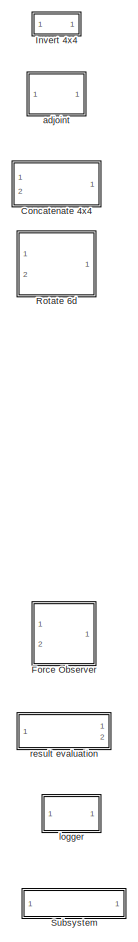
[diagram: root canvas - part 1/3, top left region]
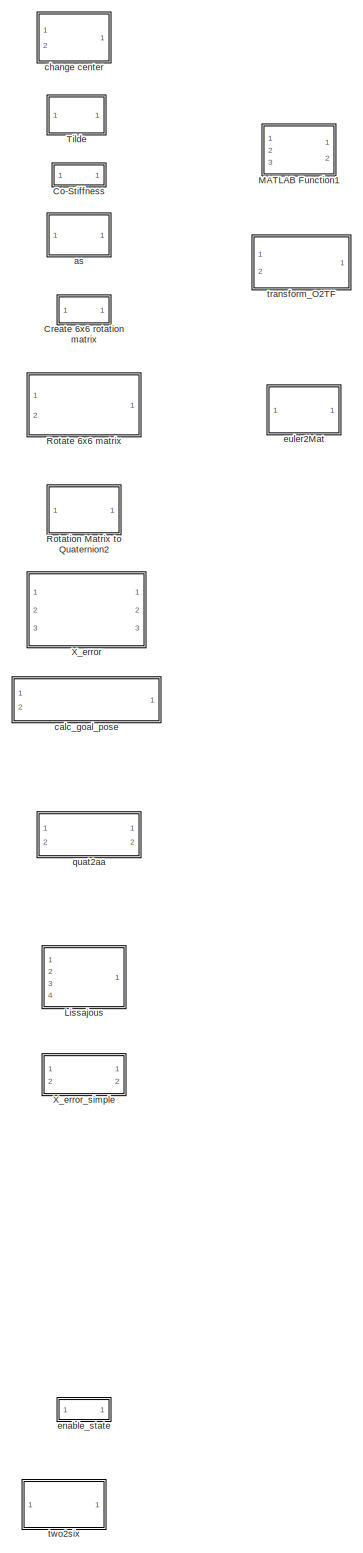
[diagram: root canvas - part 2/3, right side, full height]
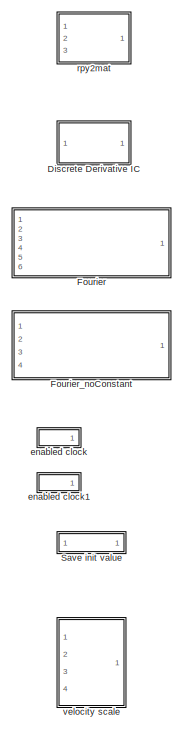
[diagram: root canvas - part 3/3, bottom left region]
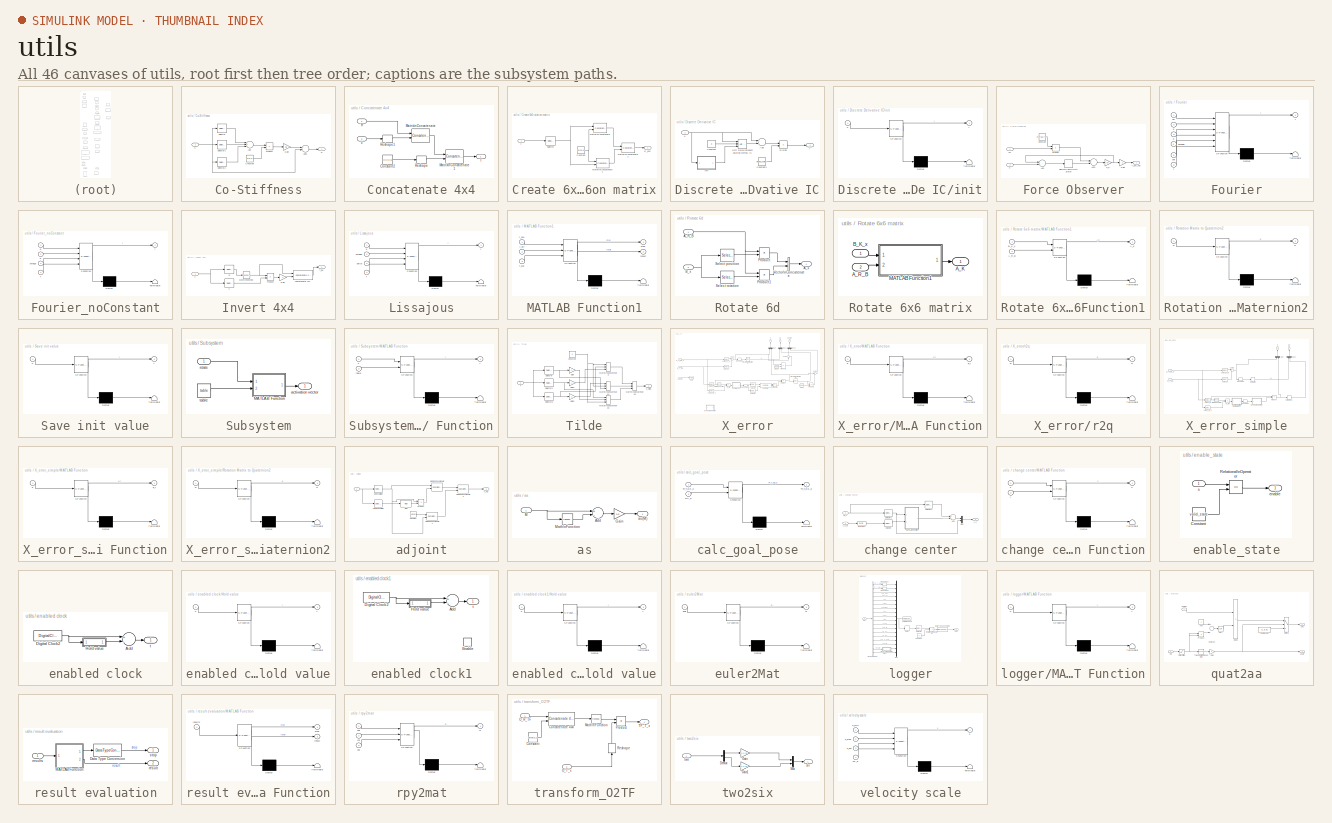
[diagram: thumbnail index - all 46 canvases of the model, root first then tree order]
MODEL utils
KIND library
BLOCK [SubSystem] Co-Stiffness
  Ports = [1, 1]
  RequestExecContextInheritance = off
  SID = 209
BLOCK [Sum] Co-Stiffness/Add
  InputSameDT = off
  Inputs = +++
  OutDataTypeStr = Inherit: Inherit via internal rule
  Ports = [3, 1]
  SID = 215
  SaturateOnIntegerOverflow = off
BLOCK [Sum] Co-Stiffness/Add1
  InputSameDT = off
  Inputs = +-
  OutDataTypeStr = Inherit: Inherit via internal rule
  Ports = [2, 1]
  SID = 219
  SaturateOnIntegerOverflow = off
BLOCK [Constant] Co-Stiffness/Constant
  SID = 216
  Value = eye(3)
BLOCK [Outport] Co-Stiffness/G
  IconDisplay = Port number
  SID = 220
BLOCK [Gain] Co-Stiffness/Gain
  Gain = 0.5
  OutDataTypeStr = Inherit: Inherit via internal rule
  ParamDataTypeStr = Inherit: Inherit via internal rule
  SID = 218
  SaturateOnIntegerOverflow = off
BLOCK [Inport] Co-Stiffness/K
  IconDisplay = Port number
  SID = 214
BLOCK [Product] Co-Stiffness/Product
  InputSameDT = off
  OutDataTypeStr = Inherit: Inherit via internal rule
  Ports = [2, 1]
  RndMeth = Floor
  SID = 217
  SaturateOnIntegerOverflow = off
BLOCK [Selector] Co-Stiffness/Selector
  IndexOptions = Index vector (dialog),Index vector (dialog)
  Indices = 1,1
  InputPortWidth = 3
  NumberOfDimensions = 2
  OutputSizes = 1,1
  Ports = [1, 1]
  SID = 208
BLOCK [Selector] Co-Stiffness/Selector1
  IndexOptions = Index vector (dialog),Index vector (dialog)
  Indices = 2,2
  InputPortWidth = 3
  NumberOfDimensions = 2
  OutputSizes = 1,1
  Ports = [1, 1]
  SID = 212
BLOCK [Selector] Co-Stiffness/Selector2
  IndexOptions = Index vector (dialog),Index vector (dialog)
  Indices = 3,3
  InputPortWidth = 3
  NumberOfDimensions = 2
  OutputSizes = 1,1
  Ports = [1, 1]
  SID = 213
BLOCK [SubSystem] Concatenate 4x4
  Ports = [2, 1]
  RequestExecContextInheritance = off
  SID = 1
BLOCK [Constant] Concatenate 4x4/Constant2
  SID = 4
  Value = [0 0 0 1]
BLOCK [Concatenate] Concatenate 4x4/Matrix\nConcatenate
  ConcatenateDimension = 2
  Mode = Multidimensional array
  Ports = [2, 1]
  SID = 5
BLOCK [Concatenate] Concatenate 4x4/Matrix\nConcatenate1
  Mode = Multidimensional array
  Ports = [2, 1]
  SID = 6
BLOCK [Inport] Concatenate 4x4/R
  IconDisplay = Port number
  SID = 2
BLOCK [Reshape] Concatenate 4x4/Reshape
  OutputDimensionality = Row vector (2-D)
  Ports = [1, 1]
  SID = 7
BLOCK [Reshape] Concatenate 4x4/Reshape1
  OutputDimensionality = Column vector (2-D)
  Ports = [1, 1]
  SID = 8
BLOCK [Outport] Concatenate 4x4/T
  IconDisplay = Port number
  SID = 9
BLOCK [Inport] Concatenate 4x4/x
  IconDisplay = Port number
  Port = 2
  SID = 3
BLOCK [SubSystem] Create 6x6 rotation matrix
  Ports = [1, 1]
  RequestExecContextInheritance = off
  SID = 260
BLOCK [Constant] Create 6x6 rotation matrix/Constant
  SID = 265
  Value = zeros(3)
BLOCK [Concatenate] Create 6x6 rotation matrix/Matrix\nConcatenate
  ConcatenateDimension = 2
  Mode = Multidimensional array
  Ports = [2, 1]
  SID = 263
BLOCK [Concatenate] Create 6x6 rotation matrix/Matrix\nConcatenate1
  ConcatenateDimension = 2
  Mode = Multidimensional array
  Ports = [2, 1]
  SID = 264
BLOCK [Concatenate] Create 6x6 rotation matrix/Matrix\nConcatenate2
  Mode = Multidimensional array
  Ports = [2, 1]
  SID = 266
BLOCK [Outport] Create 6x6 rotation matrix/R_6x6
  IconDisplay = Port number
  SID = 267
BLOCK [Selector] Create 6x6 rotation matrix/Selector
  IndexOptions = Index vector (dialog),Index vector (dialog)
  Indices = 1:3,1:3
  InputPortWidth = 3
  NumberOfDimensions = 2
  OutputSizes = 1,1
  Ports = [1, 1]
  SID = 259
BLOCK [Inport] Create 6x6 rotation matrix/T
  IconDisplay = Port number
  SID = 261
BLOCK [SubSystem] Discrete Derivative IC
  Ports = [1, 1]
  RequestExecContextInheritance = off
  SID = 725
BLOCK [Sum] Discrete Derivative IC/Add
  InputSameDT = off
  Inputs = +-
  OutDataTypeStr = Inherit: Inherit via internal rule
  Ports = [2, 1]
  SID = 731
  SaturateOnIntegerOverflow = off
BLOCK [Constant] Discrete Derivative IC/Constant
  SID = 733
  Value = 0
BLOCK [Constant] Discrete Derivative IC/Constant1
  SID = 735
  Value = model_sample_time
BLOCK [Product] Discrete Derivative IC/Divide
  InputSameDT = off
  Inputs = */
  OutDataTypeStr = Inherit: Inherit via internal rule
  Ports = [2, 1]
  RndMeth = Floor
  SID = 734
  SaturateOnIntegerOverflow = off
BLOCK [Reference] Discrete Derivative IC/Unit Delay\nResettable\nExternal IC  REF=simulink_need_slupdate/Unit Delay\nResettable\nExternal IC
  Ports = [3, 1]
  SID = 724
  SourceBlock = simulink_need_slupdate/Unit Delay\nResettable\nExternal IC
  SourceProductBaseCode = SL
  SourceProductName = Simulink
  SourceType = Unit Delay Resettable External Initial Condition
  tsamp = -1
BLOCK [SubSystem] Discrete Derivative IC/init
  ErrorFcn = Stateflow.Translate.translate
  PermitHierarchicalResolution = ExplicitOnly
  Ports = [1, 1]
  RequestExecContextInheritance = off
  SFBlockType = MATLAB Function
  SID = 736
  TreatAsAtomicUnit = on
BLOCK [Demux] Discrete Derivative IC/init/ Demux 
  Outputs = 1
  Ports = [1, 1]
  SID = 736::417
BLOCK [S-Function] Discrete Derivative IC/init/ SFunction 
  EnableBusSupport = off
  FunctionName = sf_sfun
  PortCounts = [1 2]
  Ports = [1, 2]
  SFcnIsStateOwnerBlock = off
  SFunctionDeploymentMode = off
  SID = 736::416
  Tag = Stateflow S-Function utils 20
BLOCK [Terminator] Discrete Derivative IC/init/ Terminator 
  SID = 736::418
BLOCK [Inport] Discrete Derivative IC/init/u
  IconDisplay = Port number
  SID = 736::1
BLOCK [Outport] Discrete Derivative IC/init/y
  IconDisplay = Port number
  SID = 736::5
BLOCK [Inport] Discrete Derivative IC/u
  IconDisplay = Port number
  SID = 730
BLOCK [Outport] Discrete Derivative IC/y
  IconDisplay = Port number
  SID = 729
BLOCK [SubSystem] Force Observer
  Ports = [2, 1]
  RequestExecContextInheritance = off
  SID = 43
BLOCK [Sum] Force Observer/Add
  InputSameDT = off
  Inputs = -+
  OutDataTypeStr = Inherit: Inherit via internal rule
  Ports = [2, 1]
  SID = 46
  SaturateOnIntegerOverflow = off
BLOCK [Sum] Force Observer/Add1
  InputSameDT = off
  Inputs = -+
  OutDataTypeStr = Inherit: Inherit via internal rule
  Ports = [2, 1]
  SID = 47
  SaturateOnIntegerOverflow = off
BLOCK [Constant] Force Observer/Constant
  SID = 48
  Value = eye(6,6)*0.15
BLOCK [DiscreteIntegrator] Force Observer/Discrete-Time\nIntegrator
  ICPrevOutput = DiscIntNeverNeededParam
  ICPrevScaledInput = DiscIntNeverNeededParam
  InitialConditionSetting = Auto
  Ports = [1, 1]
  SID = 49
  SampleTime = -1
BLOCK [Inport] Force Observer/F
  IconDisplay = Port number
  Port = 2
  SID = 45
BLOCK [Gain] Force Observer/Gain
  Gain = -1
  OutDataTypeStr = Inherit: Inherit via internal rule
  ParamDataTypeStr = Inherit: Inherit via internal rule
  SID = 50
  SaturateOnIntegerOverflow = off
BLOCK [Gain] Force Observer/K_o
  Gain = 30
  OutDataTypeStr = Inherit: Inherit via internal rule
  ParamDataTypeStr = Inherit: Inherit via internal rule
  SID = 51
  SaturateOnIntegerOverflow = off
BLOCK [Product] Force Observer/Product
  InputSameDT = off
  Multiplication = Matrix(*)
  OutDataTypeStr = Inherit: Inherit via internal rule
  Ports = [2, 1]
  RndMeth = Floor
  SID = 52
  SaturateOnIntegerOverflow = off
BLOCK [Inport] Force Observer/dX
  IconDisplay = Port number
  SID = 44
BLOCK [Outport] Force Observer/f_ext_hat
  IconDisplay = Port number
  SID = 53
BLOCK [SubSystem] Fourier
  ErrorFcn = Stateflow.Translate.translate
  PermitHierarchicalResolution = ExplicitOnly
  Ports = [6, 1]
  RequestExecContextInheritance = off
  SFBlockType = MATLAB Function
  SID = 740
  TreatAsAtomicUnit = on
BLOCK [Demux] Fourier/ Demux 
  Outputs = 1
  Ports = [1, 1]
  SID = 740::113
BLOCK [S-Function] Fourier/ SFunction 
  EnableBusSupport = off
  FunctionName = sf_sfun
  PortCounts = [6 2]
  Ports = [6, 2]
  SFcnIsStateOwnerBlock = off
  SFunctionDeploymentMode = off
  SID = 740::112
  Tag = Stateflow S-Function utils 21
BLOCK [Terminator] Fourier/ Terminator 
  SID = 740::114
BLOCK [Inport] Fourier/a
  IconDisplay = Port number
  Port = 2
  SID = 740::1
BLOCK [Inport] Fourier/a0
  IconDisplay = Port number
  SID = 740::50
BLOCK [Inport] Fourier/b
  IconDisplay = Port number
  Port = 3
  SID = 740::22
BLOCK [Outport] Fourier/f
  IconDisplay = Port number
  SID = 740::5
BLOCK [Inport] Fourier/omega
  IconDisplay = Port number
  Port = 4
  SID = 740::23
BLOCK [Inport] Fourier/phi
  IconDisplay = Port number
  Port = 5
  SID = 740::108
BLOCK [Inport] Fourier/t
  IconDisplay = Port number
  Port = 6
  SID = 740::24
BLOCK [SubSystem] Fourier_noConstant
  ErrorFcn = Stateflow.Translate.translate
  PermitHierarchicalResolution = ExplicitOnly
  Ports = [4, 1]
  RequestExecContextInheritance = off
  SFBlockType = MATLAB Function
  SID = 765
  TreatAsAtomicUnit = on
BLOCK [Demux] Fourier_noConstant/ Demux 
  Outputs = 1
  Ports = [1, 1]
  SID = 765::163
BLOCK [S-Function] Fourier_noConstant/ SFunction 
  EnableBusSupport = off
  FunctionName = sf_sfun
  PortCounts = [4 2]
  Ports = [4, 2]
  SFcnIsStateOwnerBlock = off
  SFunctionDeploymentMode = off
  SID = 765::162
  Tag = Stateflow S-Function utils 23
BLOCK [Terminator] Fourier_noConstant/ Terminator 
  SID = 765::164
BLOCK [Inport] Fourier_noConstant/a
  IconDisplay = Port number
  SID = 765::1
BLOCK [Inport] Fourier_noConstant/b
  IconDisplay = Port number
  Port = 2
  SID = 765::22
BLOCK [Outport] Fourier_noConstant/f
  IconDisplay = Port number
  SID = 765::5
BLOCK [Inport] Fourier_noConstant/omega
  IconDisplay = Port number
  Port = 3
  SID = 765::23
BLOCK [Inport] Fourier_noConstant/t
  IconDisplay = Port number
  Port = 4
  SID = 765::24
BLOCK [SubSystem] Invert 4x4
  Ports = [1, 1]
  RequestExecContextInheritance = off
  SID = 91
BLOCK [Reference] Invert 4x4/Concatenate 4x4  REF=$bdroot/Concatenate 4x4
  Ports = [2, 1]
  SID = 104
  SourceBlock = $bdroot/Concatenate 4x4
  SourceType = SubSystem
BLOCK [Gain] Invert 4x4/Gain
  Gain = -1
  OutDataTypeStr = Inherit: Inherit via internal rule
  ParamDataTypeStr = Inherit: Inherit via internal rule
  SID = 107
  SaturateOnIntegerOverflow = off
BLOCK [Math] Invert 4x4/Math\nFunction
  Operator = transpose
  Ports = [1, 1]
  SID = 100
BLOCK [Product] Invert 4x4/Product
  InputSameDT = off
  Multiplication = Matrix(*)
  OutDataTypeStr = Inherit: Inherit via internal rule
  Ports = [2, 1]
  RndMeth = Floor
  SID = 102
  SaturateOnIntegerOverflow = off
BLOCK [Selector] Invert 4x4/R
  IndexOptions = Index vector (dialog),Index vector (dialog)
  Indices = 1:3,1:3
  InputPortWidth = 3
  NumberOfDimensions = 2
  OutputSizes = 1,1
  Ports = [1, 1]
  SID = 89
BLOCK [Inport] Invert 4x4/T
  IconDisplay = Port number
  SID = 96
BLOCK [Outport] Invert 4x4/T_inv
  IconDisplay = Port number
  SID = 97
BLOCK [Selector] Invert 4x4/x
  IndexOptions = Index vector (dialog),Index vector (dialog)
  Indices = 1:3,4
  InputPortWidth = 3
  NumberOfDimensions = 2
  OutputSizes = 1,1
  Ports = [1, 1]
  SID = 90
BLOCK [SubSystem] Lissajous
  ErrorFcn = Stateflow.Translate.translate
  PermitHierarchicalResolution = ExplicitOnly
  Ports = [4, 1]
  RequestExecContextInheritance = off
  SFBlockType = MATLAB Function
  SID = 598
  TreatAsAtomicUnit = on
BLOCK [Demux] Lissajous/ Demux 
  Outputs = 1
  Ports = [1, 1]
  SID = 598::56
BLOCK [S-Function] Lissajous/ SFunction 
  EnableBusSupport = off
  FunctionName = sf_sfun
  PortCounts = [4 2]
  Ports = [4, 2]
  SFcnIsStateOwnerBlock = off
  SFunctionDeploymentMode = off
  SID = 598::55
  Tag = Stateflow S-Function utils 7
BLOCK [Terminator] Lissajous/ Terminator 
  SID = 598::57
BLOCK [Inport] Lissajous/a
  IconDisplay = Port number
  SID = 598::1
BLOCK [Inport] Lissajous/delta
  IconDisplay = Port number
  Port = 3
  SID = 598::23
BLOCK [Inport] Lissajous/omega
  IconDisplay = Port number
  Port = 2
  SID = 598::22
BLOCK [Inport] Lissajous/t
  IconDisplay = Port number
  Port = 4
  SID = 598::24
BLOCK [Outport] Lissajous/y
  IconDisplay = Port number
  SID = 598::5
BLOCK [SubSystem] MATLAB Function1
  ErrorFcn = Stateflow.Translate.translate
  PermitHierarchicalResolution = ExplicitOnly
  Ports = [3, 2]
  RequestExecContextInheritance = off
  SFBlockType = MATLAB Function
  SID = 1011
  TreatAsAtomicUnit = on
BLOCK [Demux] MATLAB Function1/ Demux 
  Outputs = 1
  Ports = [1, 1]
  SID = 1011::113
BLOCK [S-Function] MATLAB Function1/ SFunction 
  EnableBusSupport = off
  FunctionName = sf_sfun
  PortCounts = [3 3]
  Ports = [3, 3]
  SFcnIsStateOwnerBlock = off
  SFunctionDeploymentMode = off
  SID = 1011::112
  Tag = Stateflow S-Function utils 27
BLOCK [Terminator] MATLAB Function1/ Terminator 
  SID = 1011::114
BLOCK [Inport] MATLAB Function1/r_err
  IconDisplay = Port number
  Port = 2
  SID = 1011::22
BLOCK [Inport] MATLAB Function1/r_pre
  IconDisplay = Port number
  SID = 1011::1
BLOCK [Inport] MATLAB Function1/r_suc
  IconDisplay = Port number
  Port = 3
  SID = 1011::23
BLOCK [Outport] MATLAB Function1/result
  IconDisplay = Port number
  Port = 2
  SID = 1011::5
BLOCK [Outport] MATLAB Function1/stop
  IconDisplay = Port number
  SID = 1011::24
BLOCK [SubSystem] Rotate 6d
  Ports = [2, 1]
  RequestExecContextInheritance = off
  SID = 10
BLOCK [Inport] Rotate 6d/A_R_B
  IconDisplay = Port number
  SID = 11
BLOCK [Outport] Rotate 6d/A_x
  IconDisplay = Port number
  SID = 18
BLOCK [Inport] Rotate 6d/B_x
  IconDisplay = Port number
  Port = 2
  SID = 12
BLOCK [Product] Rotate 6d/Product
  InputSameDT = off
  Multiplication = Matrix(*)
  OutDataTypeStr = Inherit: Inherit via internal rule
  Ports = [2, 1]
  RndMeth = Floor
  SID = 13
  SaturateOnIntegerOverflow = off
BLOCK [Product] Rotate 6d/Product1
  InputSameDT = off
  Multiplication = Matrix(*)
  OutDataTypeStr = Inherit: Inherit via internal rule
  Ports = [2, 1]
  RndMeth = Floor
  SID = 14
  SaturateOnIntegerOverflow = off
BLOCK [Selector] Rotate 6d/Select position
  IndexOptions = Index vector (dialog)
  Indices = 1:3
  InputPortWidth = 6
  OutputSizes = 1
  Ports = [1, 1]
  SID = 15
BLOCK [Selector] Rotate 6d/Select rotation
  IndexOptions = Index vector (dialog)
  Indices = 4:6
  InputPortWidth = 6
  OutputSizes = 1
  Ports = [1, 1]
  SID = 16
BLOCK [Concatenate] Rotate 6d/Vector\nConcatenate
  Ports = [2, 1]
  SID = 17
BLOCK [SubSystem] Rotate 6x6 matrix
  Ports = [2, 1]
  RequestExecContextInheritance = off
  SID = 269
BLOCK [Outport] Rotate 6x6 matrix/A_K
  IconDisplay = Port number
  SID = 272
BLOCK [Inport] Rotate 6x6 matrix/A_R_B
  IconDisplay = Port number
  Port = 2
  SID = 271
BLOCK [Inport] Rotate 6x6 matrix/B_K_x
  IconDisplay = Port number
  SID = 270
BLOCK [SubSystem] Rotate 6x6 matrix/MATLAB Function1
  ErrorFcn = Stateflow.Translate.translate
  PermitHierarchicalResolution = ExplicitOnly
  Ports = [2, 1]
  RequestExecContextInheritance = off
  SFBlockType = MATLAB Function
  SID = 268
  TreatAsAtomicUnit = on
BLOCK [Demux] Rotate 6x6 matrix/MATLAB Function1/ Demux 
  Outputs = 1
  Ports = [1, 1]
  SID = 268::146
BLOCK [S-Function] Rotate 6x6 matrix/MATLAB Function1/ SFunction 
  EnableBusSupport = off
  FunctionName = sf_sfun
  PortCounts = [2 2]
  Ports = [2, 2]
  SFcnIsStateOwnerBlock = off
  SFunctionDeploymentMode = off
  SID = 268::145
  Tag = Stateflow S-Function utils 61
BLOCK [Terminator] Rotate 6x6 matrix/MATLAB Function1/ Terminator 
  SID = 268::147
BLOCK [Outport] Rotate 6x6 matrix/MATLAB Function1/A_K
  IconDisplay = Port number
  SID = 268::5
BLOCK [Inport] Rotate 6x6 matrix/MATLAB Function1/A_R_B
  IconDisplay = Port number
  Port = 2
  SID = 268::21
BLOCK [Inport] Rotate 6x6 matrix/MATLAB Function1/B_K_x
  IconDisplay = Port number
  SID = 268::1
BLOCK [SubSystem] Rotation Matrix to Quaternion2
  ErrorFcn = Stateflow.Translate.translate
  PermitHierarchicalResolution = ExplicitOnly
  Ports = [1, 1]
  RequestExecContextInheritance = off
  SFBlockType = MATLAB Function
  SID = 292
  TreatAsAtomicUnit = on
BLOCK [Demux] Rotation Matrix to Quaternion2/ Demux 
  Outputs = 1
  Ports = [1, 1]
  SID = 292::133
BLOCK [S-Function] Rotation Matrix to Quaternion2/ SFunction 
  EnableBusSupport = off
  FunctionName = sf_sfun
  PortCounts = [1 2]
  Ports = [1, 2]
  SFcnIsStateOwnerBlock = off
  SFunctionDeploymentMode = off
  SID = 292::132
  Tag = Stateflow S-Function utils 3
BLOCK [Terminator] Rotation Matrix to Quaternion2/ Terminator 
  SID = 292::134
BLOCK [Inport] Rotation Matrix to Quaternion2/R
  IconDisplay = Port number
  SID = 292::1
BLOCK [Outport] Rotation Matrix to Quaternion2/q
  IconDisplay = Port number
  SID = 292::5
BLOCK [SubSystem] Save init value
  ErrorFcn = Stateflow.Translate.translate
  PermitHierarchicalResolution = ExplicitOnly
  Ports = [1, 1]
  RequestExecContextInheritance = off
  SFBlockType = MATLAB Function
  SID = 772
  TreatAsAtomicUnit = on
BLOCK [Demux] Save init value/ Demux 
  Outputs = 1
  Ports = [1, 1]
  SID = 772::397
BLOCK [S-Function] Save init value/ SFunction 
  EnableBusSupport = off
  FunctionName = sf_sfun
  PortCounts = [1 2]
  Ports = [1, 2]
  SFcnIsStateOwnerBlock = off
  SFunctionDeploymentMode = off
  SID = 772::396
  Tag = Stateflow S-Function utils 24
BLOCK [Terminator] Save init value/ Terminator 
  SID = 772::398
BLOCK [Inport] Save init value/u
  IconDisplay = Port number
  SID = 772::1
BLOCK [Outport] Save init value/y
  IconDisplay = Port number
  SID = 772::5
BLOCK [SubSystem] Subsystem
  Ports = [1, 1]
  RequestExecContextInheritance = off
  SID = 704
BLOCK [SubSystem] Subsystem/MATLAB Function
  ErrorFcn = Stateflow.Translate.translate
  PermitHierarchicalResolution = ExplicitOnly
  Ports = [2, 1]
  RequestExecContextInheritance = off
  SFBlockType = MATLAB Function
  SID = 706
  TreatAsAtomicUnit = on
BLOCK [Demux] Subsystem/MATLAB Function/ Demux 
  Outputs = 1
  Ports = [1, 1]
  SID = 706::36
BLOCK [S-Function] Subsystem/MATLAB Function/ SFunction 
  EnableBusSupport = off
  FunctionName = sf_sfun
  PortCounts = [2 2]
  Ports = [2, 2]
  SFcnIsStateOwnerBlock = off
  SFunctionDeploymentMode = off
  SID = 706::35
  Tag = Stateflow S-Function utils 16
BLOCK [Terminator] Subsystem/MATLAB Function/ Terminator 
  SID = 706::37
BLOCK [Inport] Subsystem/MATLAB Function/s
  IconDisplay = Port number
  SID = 706::1
BLOCK [Inport] Subsystem/MATLAB Function/table
  IconDisplay = Port number
  Port = 2
  SID = 706::22
BLOCK [Outport] Subsystem/MATLAB Function/y
  IconDisplay = Port number
  SID = 706::5
BLOCK [Outport] Subsystem/activation vector
  IconDisplay = Port number
  SID = 708
BLOCK [Inport] Subsystem/state
  IconDisplay = Port number
  SID = 705
BLOCK [Constant] Subsystem/table
  SID = 707
  Value = table
BLOCK [SubSystem] Tilde
  Ports = [1, 1]
  RequestExecContextInheritance = off
  SID = 192
BLOCK [Constant] Tilde/Constant
  SID = 201
  Value = 0
BLOCK [Gain] Tilde/Gain
  Gain = -1
  OutDataTypeStr = Inherit: Inherit via internal rule
  ParamDataTypeStr = Inherit: Inherit via internal rule
  SID = 197
  SaturateOnIntegerOverflow = off
BLOCK [Gain] Tilde/Gain1
  Gain = -1
  OutDataTypeStr = Inherit: Inherit via internal rule
  ParamDataTypeStr = Inherit: Inherit via internal rule
  SID = 198
  SaturateOnIntegerOverflow = off
BLOCK [Gain] Tilde/Gain2
  Gain = -1
  OutDataTypeStr = Inherit: Inherit via internal rule
  ParamDataTypeStr = Inherit: Inherit via internal rule
  SID = 199
  SaturateOnIntegerOverflow = off
BLOCK [Concatenate] Tilde/Matrix\nConcatenate
  Mode = Multidimensional array
  NumInputs = 3
  Ports = [3, 1]
  SID = 200
BLOCK [Concatenate] Tilde/Matrix\nConcatenate1
  Mode = Multidimensional array
  NumInputs = 3
  Ports = [3, 1]
  SID = 202
BLOCK [Concatenate] Tilde/Matrix\nConcatenate2
  Mode = Multidimensional array
  NumInputs = 3
  Ports = [3, 1]
  SID = 203
BLOCK [Concatenate] Tilde/Matrix\nConcatenate3
  ConcatenateDimension = 2
  Mode = Multidimensional array
  NumInputs = 3
  Ports = [3, 1]
  SID = 204
BLOCK [Selector] Tilde/Selector
  IndexOptions = Index vector (dialog)
  Indices = 1
  InputPortWidth = 3
  OutputSizes = 1
  Ports = [1, 1]
  SID = 191
BLOCK [Selector] Tilde/Selector1
  IndexOptions = Index vector (dialog)
  Indices = 2
  InputPortWidth = 3
  OutputSizes = 1
  Ports = [1, 1]
  SID = 195
BLOCK [Selector] Tilde/Selector2
  IndexOptions = Index vector (dialog)
  Indices = 3
  InputPortWidth = 3
  OutputSizes = 1
  Ports = [1, 1]
  SID = 196
BLOCK [Inport] Tilde/x
  IconDisplay = Port number
  SID = 193
BLOCK [Outport] Tilde/x_tilde
  IconDisplay = Port number
  SID = 205
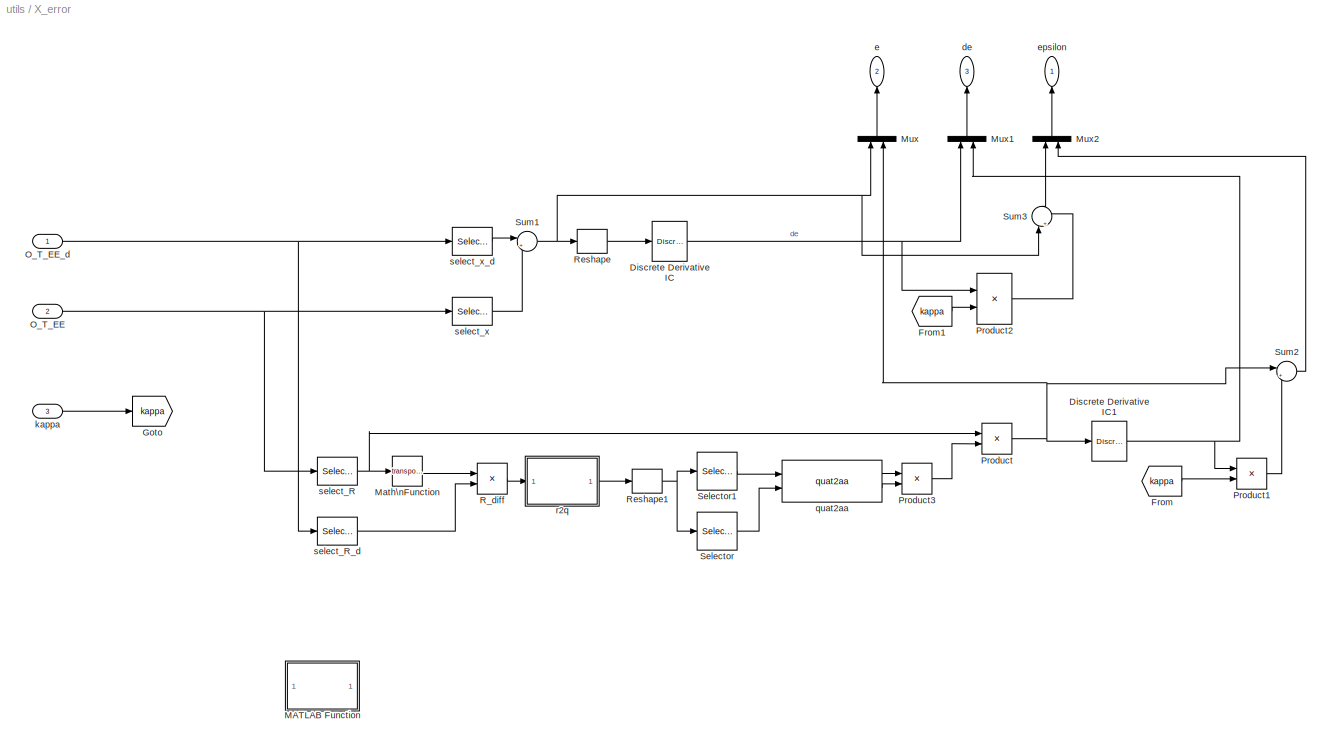
BLOCK [SubSystem] X_error
  Ports = [3, 3]
  RequestExecContextInheritance = off
  SID = 293
  TreatAsAtomicUnit = on
BLOCK [Reference] X_error/Discrete Derivative IC  REF=$bdroot/Discrete Derivative IC
  Ports = [1, 1]
  SID = 737
  SourceBlock = $bdroot/Discrete Derivative IC
  model_sample_time = model_sample_time
BLOCK [Reference] X_error/Discrete Derivative IC1  REF=$bdroot/Discrete Derivative IC
  Ports = [1, 1]
  SID = 738
  SourceBlock = $bdroot/Discrete Derivative IC
  model_sample_time = model_sample_time
BLOCK [From] X_error/From
  GotoTag = kappa
  SID = 324
BLOCK [From] X_error/From1
  GotoTag = kappa
  SID = 325
BLOCK [Goto] X_error/Goto
  GotoTag = kappa
  SID = 323
BLOCK [SubSystem] X_error/MATLAB Function
  Commented = on
  ErrorFcn = Stateflow.Translate.translate
  PermitHierarchicalResolution = ExplicitOnly
  Ports = [1, 1]
  RequestExecContextInheritance = off
  SFBlockType = MATLAB Function
  SID = 298
  TreatAsAtomicUnit = on
BLOCK [Demux] X_error/MATLAB Function/ Demux 
  Outputs = 1
  Ports = [1, 1]
  SID = 298::160
BLOCK [S-Function] X_error/MATLAB Function/ SFunction 
  EnableBusSupport = off
  FunctionName = sf_sfun
  PortCounts = [1 2]
  Ports = [1, 2]
  SFcnIsStateOwnerBlock = off
  SFunctionDeploymentMode = off
  SID = 298::159
  Tag = Stateflow S-Function utils 5
BLOCK [Terminator] X_error/MATLAB Function/ Terminator 
  SID = 298::161
BLOCK [Outport] X_error/MATLAB Function/e_r
  IconDisplay = Port number
  SID = 298::5
BLOCK [Inport] X_error/MATLAB Function/q
  IconDisplay = Port number
  SID = 298::1
BLOCK [Math] X_error/Math\nFunction
  Operator = transpose
  Ports = [1, 1]
  SID = 299
BLOCK [Mux] X_error/Mux
  DisplayOption = bar
  Inputs = 2
  Ports = [2, 1]
  SID = 300
BLOCK [Mux] X_error/Mux1
  DisplayOption = bar
  Inputs = 2
  Ports = [2, 1]
  SID = 301
BLOCK [Mux] X_error/Mux2
  DisplayOption = bar
  Inputs = 2
  Ports = [2, 1]
  SID = 302
BLOCK [Inport] X_error/O_T_EE
  IconDisplay = Port number
  Port = 2
  SID = 295
BLOCK [Inport] X_error/O_T_EE_d
  IconDisplay = Port number
  SID = 294
BLOCK [Product] X_error/Product
  InputSameDT = off
  Multiplication = Matrix(*)
  OutDataTypeStr = Inherit: Inherit via internal rule
  Ports = [2, 1]
  RndMeth = Floor
  SID = 303
  SaturateOnIntegerOverflow = off
BLOCK [Product] X_error/Product1
  InputSameDT = off
  OutDataTypeStr = Inherit: Inherit via internal rule
  Ports = [2, 1]
  SID = 304
  SaturateOnIntegerOverflow = off
BLOCK [Product] X_error/Product2
  InputSameDT = off
  OutDataTypeStr = Inherit: Inherit via internal rule
  Ports = [2, 1]
  SID = 305
  SaturateOnIntegerOverflow = off
BLOCK [Product] X_error/Product3
  InputSameDT = off
  OutDataTypeStr = Inherit: Inherit via internal rule
  Ports = [2, 1]
  RndMeth = Floor
  SID = 1072
  SaturateOnIntegerOverflow = off
BLOCK [Product] X_error/R_diff
  InputSameDT = off
  Multiplication = Matrix(*)
  OutDataTypeStr = Inherit: Inherit via internal rule
  Ports = [2, 1]
  RndMeth = Floor
  SID = 306
  SaturateOnIntegerOverflow = off
BLOCK [Reshape] X_error/Reshape
  Ports = [1, 1]
  SID = 307
BLOCK [Reshape] X_error/Reshape1
  Ports = [1, 1]
  SID = 308
BLOCK [Selector] X_error/Selector
  IndexOptions = Index vector (dialog)
  Indices = 2:4
  InputPortWidth = 4
  OutputSizes = 1
  Ports = [1, 1]
  SID = 1068
BLOCK [Selector] X_error/Selector1
  IndexOptions = Index vector (dialog)
  Indices = 1
  InputPortWidth = 4
  OutputSizes = 1
  Ports = [1, 1]
  SID = 1069
BLOCK [Sum] X_error/Sum1
  IconShape = round
  InputSameDT = off
  Inputs = |+-
  OutDataTypeStr = Inherit: Inherit via internal rule
  Ports = [2, 1]
  SID = 310
BLOCK [Sum] X_error/Sum2
  IconShape = round
  InputSameDT = off
  Inputs = |++
  OutDataTypeStr = Inherit: Inherit via internal rule
  Ports = [2, 1]
  SID = 311
BLOCK [Sum] X_error/Sum3
  IconShape = round
  InputSameDT = off
  Inputs = |++
  OutDataTypeStr = Inherit: Inherit via internal rule
  Ports = [2, 1]
  SID = 312
BLOCK [Outport] X_error/de
  IconDisplay = Port number
  Port = 3
  SID = 321
BLOCK [Outport] X_error/e
  IconDisplay = Port number
  Port = 2
  SID = 320
BLOCK [Outport] X_error/epsilon
  IconDisplay = Port number
  SID = 319
BLOCK [Inport] X_error/kappa
  IconDisplay = Port number
  Port = 3
  SID = 322
BLOCK [Reference] X_error/quat2aa  REF=$bdroot/quat2aa
  Ports = [2, 2]
  SID = 6618
  SourceBlock = $bdroot/quat2aa
  SourceType = SubSystem
BLOCK [SubSystem] X_error/r2q
  ErrorFcn = Stateflow.Translate.translate
  PermitHierarchicalResolution = ExplicitOnly
  Ports = [1, 1]
  RequestExecContextInheritance = off
  SFBlockType = MATLAB Function
  SID = 309
  TreatAsAtomicUnit = on
BLOCK [Demux] X_error/r2q/ Demux 
  Outputs = 1
  Ports = [1, 1]
  SID = 309::240
BLOCK [S-Function] X_error/r2q/ SFunction 
  EnableBusSupport = off
  FunctionName = sf_sfun
  PortCounts = [1 2]
  Ports = [1, 2]
  SFcnIsStateOwnerBlock = off
  SFunctionDeploymentMode = off
  SID = 309::239
  Tag = Stateflow S-Function utils 6
BLOCK [Terminator] X_error/r2q/ Terminator 
  SID = 309::241
BLOCK [Inport] X_error/r2q/R
  IconDisplay = Port number
  SID = 309::1
BLOCK [Outport] X_error/r2q/q
  IconDisplay = Port number
  SID = 309::5
BLOCK [Selector] X_error/select_R
  IndexOptions = Index vector (dialog),Index vector (dialog)
  Indices = [1:3],[1:3]
  InputPortWidth = 3
  NumberOfDimensions = 2
  OutputSizes = 1,1
  Ports = [1, 1]
  SID = 315
BLOCK [Selector] X_error/select_R_d
  IndexOptions = Index vector (dialog),Index vector (dialog)
  Indices = [1:3],[1:3]
  InputPortWidth = 3
  NumberOfDimensions = 2
  OutputSizes = 1,1
  Ports = [1, 1]
  SID = 316
BLOCK [Selector] X_error/select_x
  IndexOptions = Index vector (dialog),Index vector (dialog)
  Indices = [1:3],4
  InputPortWidth = 3
  NumberOfDimensions = 2
  OutputSizes = 1,1
  Ports = [1, 1]
  SID = 317
BLOCK [Selector] X_error/select_x_d
  IndexOptions = Index vector (dialog),Index vector (dialog)
  Indices = [1:3],4
  InputPortWidth = 3
  NumberOfDimensions = 2
  OutputSizes = 1,1
  Ports = [1, 1]
  SID = 318
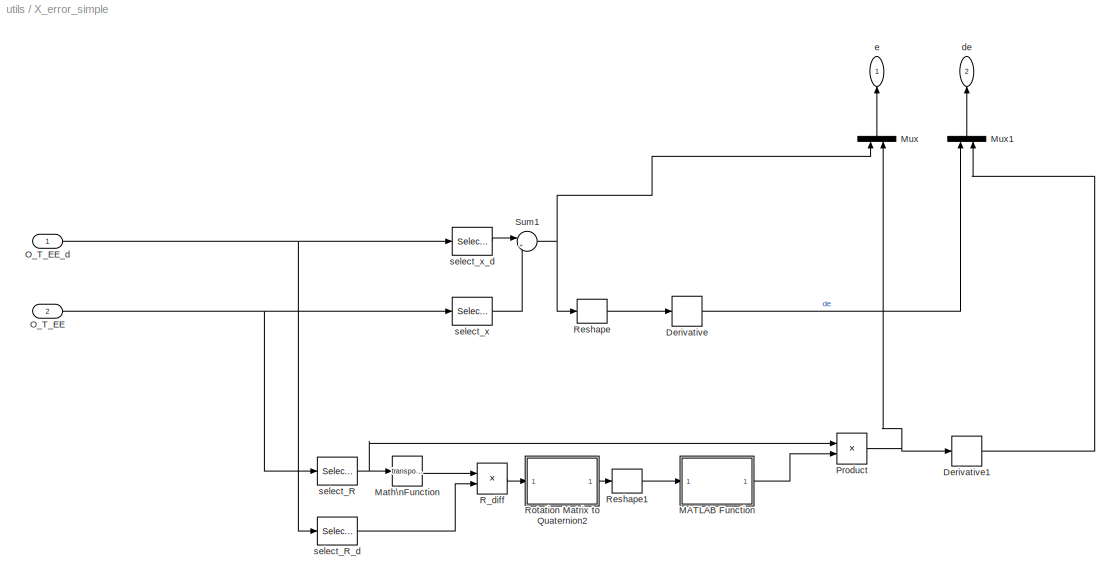
BLOCK [SubSystem] X_error_simple
  Ports = [2, 2]
  RequestExecContextInheritance = off
  SID = 646
  TreatAsAtomicUnit = on
BLOCK [Derivative] X_error_simple/Derivative
  SID = 650
BLOCK [Derivative] X_error_simple/Derivative1
  SID = 651
BLOCK [SubSystem] X_error_simple/MATLAB Function
  ErrorFcn = Stateflow.Translate.translate
  PermitHierarchicalResolution = ExplicitOnly
  Ports = [1, 1]
  RequestExecContextInheritance = off
  SFBlockType = MATLAB Function
  SID = 655
  TreatAsAtomicUnit = on
BLOCK [Demux] X_error_simple/MATLAB Function/ Demux 
  Outputs = 1
  Ports = [1, 1]
  SID = 655::64
BLOCK [S-Function] X_error_simple/MATLAB Function/ SFunction 
  EnableBusSupport = off
  FunctionName = sf_sfun
  PortCounts = [1 2]
  Ports = [1, 2]
  SFcnIsStateOwnerBlock = off
  SFunctionDeploymentMode = off
  SID = 655::63
  Tag = Stateflow S-Function utils 10
BLOCK [Terminator] X_error_simple/MATLAB Function/ Terminator 
  SID = 655::65
BLOCK [Outport] X_error_simple/MATLAB Function/e_r
  IconDisplay = Port number
  SID = 655::5
BLOCK [Inport] X_error_simple/MATLAB Function/q
  IconDisplay = Port number
  SID = 655::1
BLOCK [Math] X_error_simple/Math\nFunction
  Operator = transpose
  Ports = [1, 1]
  SID = 656
BLOCK [Mux] X_error_simple/Mux
  DisplayOption = bar
  Inputs = 2
  Ports = [2, 1]
  SID = 657
BLOCK [Mux] X_error_simple/Mux1
  DisplayOption = bar
  Inputs = 2
  Ports = [2, 1]
  SID = 658
BLOCK [Inport] X_error_simple/O_T_EE
  IconDisplay = Port number
  Port = 2
  SID = 648
BLOCK [Inport] X_error_simple/O_T_EE_d
  IconDisplay = Port number
  SID = 647
BLOCK [Product] X_error_simple/Product
  InputSameDT = off
  Multiplication = Matrix(*)
  OutDataTypeStr = Inherit: Inherit via internal rule
  Ports = [2, 1]
  RndMeth = Floor
  SID = 660
  SaturateOnIntegerOverflow = off
BLOCK [Product] X_error_simple/R_diff
  InputSameDT = off
  Multiplication = Matrix(*)
  OutDataTypeStr = Inherit: Inherit via internal rule
  Ports = [2, 1]
  RndMeth = Floor
  SID = 663
  SaturateOnIntegerOverflow = off
BLOCK [Reshape] X_error_simple/Reshape
  Ports = [1, 1]
  SID = 664
BLOCK [Reshape] X_error_simple/Reshape1
  Ports = [1, 1]
  SID = 665
BLOCK [SubSystem] X_error_simple/Rotation Matrix to Quaternion2
  ErrorFcn = Stateflow.Translate.translate
  PermitHierarchicalResolution = ExplicitOnly
  Ports = [1, 1]
  RequestExecContextInheritance = off
  SFBlockType = MATLAB Function
  SID = 666
  TreatAsAtomicUnit = on
BLOCK [Demux] X_error_simple/Rotation Matrix to Quaternion2/ Demux 
  Outputs = 1
  Ports = [1, 1]
  SID = 666::144
BLOCK [S-Function] X_error_simple/Rotation Matrix to Quaternion2/ SFunction 
  EnableBusSupport = off
  FunctionName = sf_sfun
  PortCounts = [1 2]
  Ports = [1, 2]
  SFcnIsStateOwnerBlock = off
  SFunctionDeploymentMode = off
  SID = 666::143
  Tag = Stateflow S-Function utils 11
BLOCK [Terminator] X_error_simple/Rotation Matrix to Quaternion2/ Terminator 
  SID = 666::145
BLOCK [Inport] X_error_simple/Rotation Matrix to Quaternion2/R
  IconDisplay = Port number
  SID = 666::1
BLOCK [Outport] X_error_simple/Rotation Matrix to Quaternion2/q
  IconDisplay = Port number
  SID = 666::5
BLOCK [Sum] X_error_simple/Sum1
  IconShape = round
  InputSameDT = off
  Inputs = |+-
  OutDataTypeStr = Inherit: Inherit via internal rule
  Ports = [2, 1]
  SID = 667
BLOCK [Outport] X_error_simple/de
  IconDisplay = Port number
  Port = 2
  SID = 676
BLOCK [Outport] X_error_simple/e
  IconDisplay = Port number
  SID = 675
BLOCK [Selector] X_error_simple/select_R
  IndexOptions = Index vector (dialog),Index vector (dialog)
  Indices = [1:3],[1:3]
  InputPortWidth = 3
  NumberOfDimensions = 2
  OutputSizes = 1,1
  Ports = [1, 1]
  SID = 670
BLOCK [Selector] X_error_simple/select_R_d
  IndexOptions = Index vector (dialog),Index vector (dialog)
  Indices = [1:3],[1:3]
  InputPortWidth = 3
  NumberOfDimensions = 2
  OutputSizes = 1,1
  Ports = [1, 1]
  SID = 671
BLOCK [Selector] X_error_simple/select_x
  IndexOptions = Index vector (dialog),Index vector (dialog)
  Indices = [1:3],4
  InputPortWidth = 3
  NumberOfDimensions = 2
  OutputSizes = 1,1
  Ports = [1, 1]
  SID = 672
BLOCK [Selector] X_error_simple/select_x_d
  IndexOptions = Index vector (dialog),Index vector (dialog)
  Indices = [1:3],4
  InputPortWidth = 3
  NumberOfDimensions = 2
  OutputSizes = 1,1
  Ports = [1, 1]
  SID = 673
BLOCK [SubSystem] adjoint
  Ports = [1, 1]
  RequestExecContextInheritance = off
  SID = 230
BLOCK [Constant] adjoint/Constant
  SID = 234
  Value = zeros(3)
BLOCK [Concatenate] adjoint/Matrix\nConcatenate
  ConcatenateDimension = 2
  Mode = Multidimensional array
  Ports = [2, 1]
  SID = 235
BLOCK [Concatenate] adjoint/Matrix\nConcatenate1
  ConcatenateDimension = 2
  Mode = Multidimensional array
  Ports = [2, 1]
  SID = 237
BLOCK [Concatenate] adjoint/Matrix\nConcatenate2
  Mode = Multidimensional array
  Ports = [2, 1]
  SID = 238
BLOCK [Product] adjoint/Product
  InputSameDT = off
  Multiplication = Matrix(*)
  OutDataTypeStr = Inherit: Inherit via internal rule
  Ports = [2, 1]
  RndMeth = Floor
  SID = 245
  SaturateOnIntegerOverflow = off
BLOCK [Inport] adjoint/T
  IconDisplay = Port number
  SID = 231
BLOCK [Outport] adjoint/T_adj
  IconDisplay = Port number
  SID = 232
BLOCK [Reference] adjoint/Tilde  REF=$bdroot/Tilde
  Ports = [1, 1]
  SID = 244
  SourceBlock = $bdroot/Tilde
  SourceType = SubSystem
BLOCK [Selector] adjoint/select rotation
  IndexOptions = Index vector (dialog),Index vector (dialog)
  Indices = 1:3,1:3
  InputPortWidth = 3
  NumberOfDimensions = 2
  OutputSizes = 1,1
  Ports = [1, 1]
  SID = 229
BLOCK [Selector] adjoint/select translation
  IndexOptions = Index vector (dialog),Index vector (dialog)
  Indices = 1:3,4
  InputPortWidth = 3
  NumberOfDimensions = 2
  OutputSizes = 1,1
  Ports = [1, 1]
  SID = 233
BLOCK [SubSystem] as
  Ports = [1, 1]
  RequestExecContextInheritance = off
  SID = 223
BLOCK [Sum] as/Add
  InputSameDT = off
  Inputs = +-
  OutDataTypeStr = Inherit: Inherit via internal rule
  Ports = [2, 1]
  SID = 226
  SaturateOnIntegerOverflow = off
BLOCK [Gain] as/Gain
  Gain = 0.5
  OutDataTypeStr = Inherit: Inherit via internal rule
  ParamDataTypeStr = Inherit: Inherit via internal rule
  SID = 227
  SaturateOnIntegerOverflow = off
BLOCK [Inport] as/M
  IconDisplay = Port number
  SID = 224
BLOCK [Math] as/Math\nFunction
  Operator = transpose
  Ports = [1, 1]
  SID = 222
BLOCK [Outport] as/as(M)
  IconDisplay = Port number
  SID = 225
BLOCK [SubSystem] calc_goal_pose
  ErrorFcn = Stateflow.Translate.translate
  PermitHierarchicalResolution = ExplicitOnly
  Ports = [2, 1]
  RequestExecContextInheritance = off
  SFBlockType = MATLAB Function
  SID = 614
  TreatAsAtomicUnit = on
BLOCK [Demux] calc_goal_pose/ Demux 
  Outputs = 1
  Ports = [1, 1]
  SID = 614::36
BLOCK [S-Function] calc_goal_pose/ SFunction 
  EnableBusSupport = off
  FunctionName = sf_sfun
  PortCounts = [2 2]
  Ports = [2, 2]
  SFcnIsStateOwnerBlock = off
  SFunctionDeploymentMode = off
  SID = 614::35
  Tag = Stateflow S-Function utils 9
BLOCK [Terminator] calc_goal_pose/ Terminator 
  SID = 614::37
BLOCK [Inport] calc_goal_pose/DX_d
  IconDisplay = Port number
  Port = 2
  SID = 614::22
BLOCK [Inport] calc_goal_pose/TF_T_EE_0
  IconDisplay = Port number
  SID = 614::1
BLOCK [Outport] calc_goal_pose/TF_T_EE_d
  IconDisplay = Port number
  SID = 614::5
BLOCK [SubSystem] change center
  Ports = [2, 1]
  RequestExecContextInheritance = off
  SID = 117
BLOCK [Inport] change center/A_T_B
  IconDisplay = Port number
  SID = 118
BLOCK [Outport] change center/A_X
  IconDisplay = Port number
  SID = 120
BLOCK [Sum] change center/Add
  InputSameDT = off
  OutDataTypeStr = Inherit: Inherit via internal rule
  Ports = [2, 1]
  SID = 128
  SaturateOnIntegerOverflow = off
BLOCK [Inport] change center/B_X
  IconDisplay = Port number
  Port = 2
  SID = 119
BLOCK [Reference] change center/Invert 4x4  REF=$bdroot/Invert 4x4
  Ports = [1, 1]
  SID = 114
  SourceBlock = $bdroot/Invert 4x4
  SourceType = SubSystem
BLOCK [SubSystem] change center/MATLAB Function
  ErrorFcn = Stateflow.Translate.translate
  PermitHierarchicalResolution = ExplicitOnly
  Ports = [2, 1]
  RequestExecContextInheritance = off
  SFBlockType = MATLAB Function
  SID = 124
  TreatAsAtomicUnit = on
BLOCK [Demux] change center/MATLAB Function/ Demux 
  Outputs = 1
  Ports = [1, 1]
  SID = 124::96
BLOCK [S-Function] change center/MATLAB Function/ SFunction 
  EnableBusSupport = off
  FunctionName = sf_sfun
  PortCounts = [2 2]
  Ports = [2, 2]
  SFcnIsStateOwnerBlock = off
  SFunctionDeploymentMode = off
  SID = 124::95
  Tag = Stateflow S-Function utils 4
BLOCK [Terminator] change center/MATLAB Function/ Terminator 
  SID = 124::97
BLOCK [Inport] change center/MATLAB Function/x
  IconDisplay = Port number
  SID = 124::1
BLOCK [Inport] change center/MATLAB Function/y
  IconDisplay = Port number
  Port = 2
  SID = 124::22
BLOCK [Outport] change center/MATLAB Function/z
  IconDisplay = Port number
  SID = 124::5
BLOCK [Mux] change center/Mux
  DisplayOption = bar
  Inputs = 2
  Ports = [2, 1]
  SID = 131
BLOCK [Selector] change center/Selector
  IndexOptions = Index vector (dialog),Index vector (dialog)
  Indices = 1:3,4
  InputPortWidth = 3
  NumberOfDimensions = 2
  OutputSizes = 1,1
  Ports = [1, 1]
  SID = 123
BLOCK [Selector] change center/Selector1
  IndexOptions = Index vector (dialog)
  Indices = 4:6
  InputPortWidth = 6
  OutputSizes = 1
  Ports = [1, 1]
  SID = 125
BLOCK [Selector] change center/Selector2
  IndexOptions = Index vector (dialog)
  Indices = 1:3
  InputPortWidth = 6
  OutputSizes = 1
  Ports = [1, 1]
  SID = 129
BLOCK [SubSystem] enable_state
  Ports = [1, 1]
  RequestExecContextInheritance = off
  SID = 787
BLOCK [Constant] enable_state/Constant
  SID = 789
  Value = valid_state
BLOCK [RelationalOperator] enable_state/Relational\nOperator
  InputSameDT = off
  Operator = ==
  OutDataTypeStr = boolean
  Ports = [2, 1]
  RndMeth = Simplest
  SID = 790
BLOCK [Outport] enable_state/enable
  IconDisplay = Port number
  SID = 791
BLOCK [Inport] enable_state/s
  IconDisplay = Port number
  SID = 788
BLOCK [SubSystem] enabled clock
  Ports = [0, 1]
  RequestExecContextInheritance = off
  SID = 750
BLOCK [Sum] enabled clock/Add
  InputSameDT = off
  Inputs = +-
  OutDataTypeStr = Inherit: Inherit via internal rule
  Ports = [2, 1]
  SID = 747
  SaturateOnIntegerOverflow = off
BLOCK [DigitalClock] enabled clock/Digital Clock2
  SID = 748
  SampleTime = model_sample_time
BLOCK [SubSystem] enabled clock/Hold value
  ErrorFcn = Stateflow.Translate.translate
  PermitHierarchicalResolution = ExplicitOnly
  Ports = [1, 1]
  RequestExecContextInheritance = off
  SFBlockType = MATLAB Function
  SID = 749
  TreatAsAtomicUnit = on
BLOCK [Demux] enabled clock/Hold value/ Demux 
  Outputs = 1
  Ports = [1, 1]
  SID = 749::125
BLOCK [S-Function] enabled clock/Hold value/ SFunction 
  EnableBusSupport = off
  FunctionName = sf_sfun
  PortCounts = [1 2]
  Ports = [1, 2]
  SFcnIsStateOwnerBlock = off
  SFunctionDeploymentMode = off
  SID = 749::124
  Tag = Stateflow S-Function utils 22
BLOCK [Terminator] enabled clock/Hold value/ Terminator 
  SID = 749::126
BLOCK [Inport] enabled clock/Hold value/u
  IconDisplay = Port number
  SID = 749::1
BLOCK [Outport] enabled clock/Hold value/y
  IconDisplay = Port number
  SID = 749::5
BLOCK [Outport] enabled clock/t
  IconDisplay = Port number
  SID = 751
BLOCK [SubSystem] enabled clock1
  Ports = [0, 1, 1]
  RequestExecContextInheritance = off
  SID = 1078
BLOCK [Sum] enabled clock1/Add
  InputSameDT = off
  Inputs = +-
  OutDataTypeStr = Inherit: Inherit via internal rule
  Ports = [2, 1]
  SID = 1080
  SaturateOnIntegerOverflow = off
BLOCK [DigitalClock] enabled clock1/Digital Clock2
  SID = 1081
  SampleTime = model_sample_time
BLOCK [EnablePort] enabled clock1/Enable
  Ports = []
  SID = 1079
BLOCK [SubSystem] enabled clock1/Hold value
  ErrorFcn = Stateflow.Translate.translate
  PermitHierarchicalResolution = ExplicitOnly
  Ports = [1, 1]
  RequestExecContextInheritance = off
  SFBlockType = MATLAB Function
  SID = 1082
  TreatAsAtomicUnit = on
BLOCK [Demux] enabled clock1/Hold value/ Demux 
  Outputs = 1
  Ports = [1, 1]
  SID = 1082::128
BLOCK [S-Function] enabled clock1/Hold value/ SFunction 
  EnableBusSupport = off
  FunctionName = sf_sfun
  PortCounts = [1 2]
  Ports = [1, 2]
  SFcnIsStateOwnerBlock = off
  SFunctionDeploymentMode = off
  SID = 1082::127
  Tag = Stateflow S-Function utils 30
BLOCK [Terminator] enabled clock1/Hold value/ Terminator 
  SID = 1082::129
BLOCK [Inport] enabled clock1/Hold value/u
  IconDisplay = Port number
  SID = 1082::1
BLOCK [Outport] enabled clock1/Hold value/y
  IconDisplay = Port number
  SID = 1082::5
BLOCK [Outport] enabled clock1/t
  IconDisplay = Port number
  SID = 1083
BLOCK [SubSystem] euler2Mat
  ErrorFcn = Stateflow.Translate.translate
  PermitHierarchicalResolution = ExplicitOnly
  Ports = [1, 1]
  RequestExecContextInheritance = off
  SFBlockType = MATLAB Function
  SID = 1023
  TreatAsAtomicUnit = on
BLOCK [Demux] euler2Mat/ Demux 
  Outputs = 1
  Ports = [1, 1]
  SID = 1023::33
BLOCK [S-Function] euler2Mat/ SFunction 
  EnableBusSupport = off
  FunctionName = sf_sfun
  PortCounts = [1 2]
  Ports = [1, 2]
  SFcnIsStateOwnerBlock = off
  SFunctionDeploymentMode = off
  SID = 1023::32
  Tag = Stateflow S-Function utils 28
BLOCK [Terminator] euler2Mat/ Terminator 
  SID = 1023::34
BLOCK [Outport] euler2Mat/R
  IconDisplay = Port number
  SID = 1023::5
BLOCK [Inport] euler2Mat/ang
  IconDisplay = Port number
  SID = 1023::1
BLOCK [SubSystem] logger
  Ports = [1, 1]
  RequestExecContextInheritance = off
  SID = 68
BLOCK [BusSelector] logger/Bus\nSelector
  OutputAsBus = off
  OutputSignals = robot.log_percepts.TF_T_EE,robot.interpolator.TF_T_EE_d,robot.log_percepts.TF_dX,robot.interpolator.dX_d,robot.controller.impedance.e,robot.controller.impedance.de,robot.controller.impedance.epsilon,robot.controller.adaptation.stiffness.K,robot.controller.adaptation.stiffness.dK,robot.controller.impedance.D,robot.controller.adaptation.feed_forward.F_ff,robot.controller.adaptation.feed_forward.dF_f...<+138ch>
  Ports = [1, 18]
  SID = 70
BLOCK [Constant] logger/Constant
  SID = 285
  Value = 0
BLOCK [DataTypeConversion] logger/Data Type Conversion
  OutDataTypeStr = double
  RndMeth = Floor
  SID = 1496
  SaturateOnIntegerOverflow = off
BLOCK [Delay] logger/Delay
  DelayLength = 3
  InputPortMap = u0
  Ports = [1, 1]
  SID = 289
BLOCK [SubSystem] logger/MATLAB Function
  ErrorFcn = Stateflow.Translate.translate
  PermitHierarchicalResolution = ExplicitOnly
  Ports = [1, 1]
  RequestExecContextInheritance = off
  SFBlockType = MATLAB Function
  SID = 290
  TreatAsAtomicUnit = on
BLOCK [Demux] logger/MATLAB Function/ Demux 
  Outputs = 1
  Ports = [1, 1]
  SID = 290::290
BLOCK [S-Function] logger/MATLAB Function/ SFunction 
  EnableBusSupport = off
  FunctionName = sf_sfun
  PortCounts = [1 2]
  Ports = [1, 2]
  SFcnIsStateOwnerBlock = off
  SFunctionDeploymentMode = off
  SID = 290::289
  Tag = Stateflow S-Function utils 2
BLOCK [Terminator] logger/MATLAB Function/ Terminator 
  SID = 290::291
BLOCK [Inport] logger/MATLAB Function/u
  IconDisplay = Port number
  SID = 290::1
BLOCK [Outport] logger/MATLAB Function/y
  IconDisplay = Port number
  SID = 290::5
BLOCK [Mux] logger/Mux
  DisplayOption = bar
  Inputs = 18
  Ports = [18, 1]
  SID = 71
BLOCK [RelationalOperator] logger/Relational\nOperator
  InputSameDT = off
  Operator = ~=
  OutDataTypeStr = boolean
  Ports = [2, 1]
  RndMeth = Simplest
  SID = 284
BLOCK [Reshape] logger/Reshape1
  Ports = [1, 1]
  SID = 76
BLOCK [Reshape] logger/Reshape2
  Ports = [1, 1]
  SID = 75
BLOCK [Selector] logger/Selector
  IndexOptions = Index vector (dialog)
  Indices = 112
  InputPortWidth = 113
  OutputSizes = 1
  Ports = [1, 1]
  SID = 283
BLOCK [ToWorkspace] logger/To Workspace
  FixptAsFi = on
  MaxDataPoints = inf
  Ports = [1]
  Priority = 100
  SID = 72
  SampleTime = -1
  Save2DSignal = 3-D array (concatenate along third dimension)
  SaveFormat = Structure With Time
  VariableName = simout
BLOCK [Inport] logger/log
  IconDisplay = Port number
  OutDataTypeStr = Bus: log_sim
  SID = 69
BLOCK [Outport] logger/stop
  IconDisplay = Port number
  Priority = 0
  SID = 286
BLOCK [SubSystem] quat2aa
  Ports = [2, 2]
  RequestExecContextInheritance = off
  SID = 6603
BLOCK [Product] quat2aa/Divide
  InputSameDT = off
  Inputs = */
  OutDataTypeStr = Inherit: Inherit via internal rule
  Ports = [2, 1]
  RndMeth = Floor
  SID = 6606
  SaturateOnIntegerOverflow = off
BLOCK [Gain] quat2aa/Gain
  Gain = 2
  OutDataTypeStr = Inherit: Inherit via internal rule
  ParamDataTypeStr = Inherit: Inherit via internal rule
  SID = 6607
  SaturateOnIntegerOverflow = off
BLOCK [Product] quat2aa/Product
  InputSameDT = off
  OutDataTypeStr = Inherit: Inherit via internal rule
  Ports = [2, 1]
  SID = 6608
  SaturateOnIntegerOverflow = off
BLOCK [Saturate] quat2aa/Saturation
  InputPortMap = u0
  LowerLimit = -1
  Ports = [1, 1]
  SID = 6609
  UpperLimit = 1
BLOCK [Sqrt] quat2aa/Sqrt
  SID = 6610
BLOCK [Sum] quat2aa/Subtract
  InputSameDT = off
  Inputs = +-
  OutDataTypeStr = Inherit: Inherit via internal rule
  Ports = [2, 1]
  SID = 6611
  SaturateOnIntegerOverflow = off
BLOCK [Switch] quat2aa/Switch1
  Criteria = u2 ~= 0
  InputSameDT = off
  SID = 6612
  SaturateOnIntegerOverflow = off
BLOCK [Trigonometry] quat2aa/Trigonometric\nFunction
  Operator = acos
  Ports = [1, 1]
  SID = 6613
BLOCK [Outport] quat2aa/angle
  IconDisplay = Port number
  SID = 6616
BLOCK [Outport] quat2aa/axis
  IconDisplay = Port number
  Port = 2
  SID = 6617
BLOCK [Constant] quat2aa/dummy axis
  SID = 6614
  Value = [1,0,0]
BLOCK [Inport] quat2aa/epsilon
  IconDisplay = Port number
  Port = 2
  SID = 6605
BLOCK [Inport] quat2aa/eta
  IconDisplay = Port number
  SID = 6604
BLOCK [Constant] quat2aa/one
  SID = 6615
BLOCK [SubSystem] result evaluation
  Ports = [1, 2]
  RequestExecContextInheritance = off
  SID = 61
BLOCK [DataTypeConversion] result evaluation/Data Type Conversion
  OutDataTypeStr = boolean
  RndMeth = Floor
  SID = 67
  SaturateOnIntegerOverflow = off
BLOCK [SubSystem] result evaluation/MATLAB Function
  ErrorFcn = Stateflow.Translate.translate
  PermitHierarchicalResolution = ExplicitOnly
  Ports = [1, 2]
  RequestExecContextInheritance = off
  SFBlockType = MATLAB Function
  SID = 63
  TreatAsAtomicUnit = on
BLOCK [Demux] result evaluation/MATLAB Function/ Demux 
  Outputs = 1
  Ports = [1, 1]
  SID = 63::207
BLOCK [S-Function] result evaluation/MATLAB Function/ SFunction 
  EnableBusSupport = off
  FunctionName = sf_sfun
  PortCounts = [1 3]
  Ports = [1, 3]
  SFcnIsStateOwnerBlock = off
  SFunctionDeploymentMode = off
  SID = 63::206
  Tag = Stateflow S-Function utils 1
BLOCK [Terminator] result evaluation/MATLAB Function/ Terminator 
  SID = 63::208
BLOCK [Outport] result evaluation/MATLAB Function/result
  IconDisplay = Port number
  Port = 2
  SID = 63::19
BLOCK [Inport] result evaluation/MATLAB Function/results
  IconDisplay = Port number
  SID = 63::1
BLOCK [Outport] result evaluation/MATLAB Function/stop
  IconDisplay = Port number
  SID = 63::5
BLOCK [Outport] result evaluation/result
  IconDisplay = Port number
  Port = 2
  SID = 65
BLOCK [Inport] result evaluation/results
  IconDisplay = Port number
  SID = 62
BLOCK [Outport] result evaluation/stop
  IconDisplay = Port number
  SID = 66
BLOCK [SubSystem] rpy2mat
  ErrorFcn = Stateflow.Translate.translate
  PermitHierarchicalResolution = ExplicitOnly
  Ports = [3, 1]
  RequestExecContextInheritance = off
  SFBlockType = MATLAB Function
  SID = 709
  TreatAsAtomicUnit = on
BLOCK [Demux] rpy2mat/ Demux 
  Outputs = 1
  Ports = [1, 1]
  SID = 709::60
BLOCK [S-Function] rpy2mat/ SFunction 
  EnableBusSupport = off
  FunctionName = sf_sfun
  PortCounts = [3 2]
  Ports = [3, 2]
  SFcnIsStateOwnerBlock = off
  SFunctionDeploymentMode = off
  SID = 709::59
  Tag = Stateflow S-Function utils 17
BLOCK [Terminator] rpy2mat/ Terminator 
  SID = 709::61
BLOCK [Outport] rpy2mat/R
  IconDisplay = Port number
  SID = 709::5
BLOCK [Inport] rpy2mat/chi
  IconDisplay = Port number
  Port = 2
  SID = 709::22
BLOCK [Inport] rpy2mat/phi
  IconDisplay = Port number
  SID = 709::1
BLOCK [Inport] rpy2mat/psi
  IconDisplay = Port number
  Port = 3
  SID = 709::23
BLOCK [SubSystem] transform_O2TF
  Ports = [2, 1]
  RequestExecContextInheritance = off
  SID = 1016
BLOCK [Reference] transform_O2TF/Concatenate 4x4  REF=$bdroot/Concatenate 4x4
  Ports = [2, 1]
  SID = 1020
  SourceBlock = $bdroot/Concatenate 4x4
  SourceType = SubSystem
BLOCK [Constant] transform_O2TF/Constant
  SID = 1021
  Value = zeros(3,1)
BLOCK [Math] transform_O2TF/Math\nFunction
  Operator = transpose
  Ports = [1, 1]
  SID = 1014
BLOCK [Inport] transform_O2TF/O_R_TF
  IconDisplay = Port number
  SID = 1017
BLOCK [Inport] transform_O2TF/O_T_x
  IconDisplay = Port number
  Port = 2
  SID = 1018
BLOCK [Product] transform_O2TF/Product
  InputSameDT = off
  Multiplication = Matrix(*)
  OutDataTypeStr = Inherit: Inherit via internal rule
  Ports = [2, 1]
  RndMeth = Floor
  SID = 1015
  SaturateOnIntegerOverflow = off
BLOCK [Reshape] transform_O2TF/Reshape
  OutputDimensionality = Customize
  OutputDimensions = [4,4]
  Ports = [1, 1]
  SID = 1022
BLOCK [Outport] transform_O2TF/TF_T_x
  IconDisplay = Port number
  SID = 1019
BLOCK [SubSystem] two2six
  Ports = [1, 1]
  RequestExecContextInheritance = off
  SID = 1497
BLOCK [Demux] two2six/Demux
  DisplayOption = bar
  Outputs = 2
  Ports = [1, 2]
  SID = 1499
BLOCK [Gain] two2six/Gain
  Gain = [1 1 1]'
  OutDataTypeStr = Inherit: Inherit via internal rule
  ParamDataTypeStr = Inherit: Inherit via internal rule
  SID = 1500
  SaturateOnIntegerOverflow = off
BLOCK [Gain] two2six/Gain1
  Gain = [1 1 1]'
  OutDataTypeStr = Inherit: Inherit via internal rule
  ParamDataTypeStr = Inherit: Inherit via internal rule
  SID = 1501
  SaturateOnIntegerOverflow = off
BLOCK [Mux] two2six/Mux
  DisplayOption = bar
  Inputs = 2
  Ports = [2, 1]
  SID = 1502
BLOCK [Outport] two2six/six
  IconDisplay = Port number
  SID = 1503
BLOCK [Inport] two2six/two
  IconDisplay = Port number
  SID = 1498
BLOCK [SubSystem] velocity scale
  ErrorFcn = Stateflow.Translate.translate
  PermitHierarchicalResolution = ExplicitOnly
  Ports = [4, 1]
  RequestExecContextInheritance = off
  SFBlockType = MATLAB Function
  SID = 1084
  TreatAsAtomicUnit = on
BLOCK [Demux] velocity scale/ Demux 
  Outputs = 1
  Ports = [1, 1]
  SID = 1084::182
BLOCK [S-Function] velocity scale/ SFunction 
  EnableBusSupport = off
  FunctionName = sf_sfun
  PortCounts = [4 2]
  Ports = [4, 2]
  SFcnIsStateOwnerBlock = off
  SFunctionDeploymentMode = off
  SID = 1084::181
  Tag = Stateflow S-Function utils 31
BLOCK [Terminator] velocity scale/ Terminator 
  SID = 1084::183
BLOCK [Inport] velocity scale/F_ext
  IconDisplay = Port number
  Port = 3
  SID = 1084::121
BLOCK [Inport] velocity scale/F_min
  IconDisplay = Port number
  SID = 1084::1
BLOCK [Inport] velocity scale/F_stop
  IconDisplay = Port number
  Port = 2
  SID = 1084::22
BLOCK [Inport] velocity scale/dX_d
  IconDisplay = Port number
  Port = 4
  SID = 1084::122
BLOCK [Outport] velocity scale/s
  IconDisplay = Port number
  SID = 1084::5
LINE Co-Stiffness/Add1:1 -> Co-Stiffness/G:1
LINE Co-Stiffness/Add:1 -> Co-Stiffness/Product:1
LINE Co-Stiffness/Constant:1 -> Co-Stiffness/Product:2
LINE Co-Stiffness/Gain:1 -> Co-Stiffness/Add1:1
NET Co-Stiffness/K:1 -> Co-Stiffness/Add1:2, Co-Stiffness/Selector1:1, Co-Stiffness/Selector2:1, Co-Stiffness/Selector:1
LINE Co-Stiffness/Product:1 -> Co-Stiffness/Gain:1
LINE Co-Stiffness/Selector1:1 -> Co-Stiffness/Add:2
LINE Co-Stiffness/Selector2:1 -> Co-Stiffness/Add:3
LINE Co-Stiffness/Selector:1 -> Co-Stiffness/Add:1
LINE Concatenate 4x4/Constant2:1 -> Concatenate 4x4/Reshape:1
LINE Concatenate 4x4/Matrix\nConcatenate1:1 -> Concatenate 4x4/T:1
LINE Concatenate 4x4/Matrix\nConcatenate:1 -> Concatenate 4x4/Matrix\nConcatenate1:1
LINE Concatenate 4x4/R:1 -> Concatenate 4x4/Matrix\nConcatenate:1
LINE Concatenate 4x4/Reshape1:1 -> Concatenate 4x4/Matrix\nConcatenate:2
LINE Concatenate 4x4/Reshape:1 -> Concatenate 4x4/Matrix\nConcatenate1:2
LINE Concatenate 4x4/x:1 -> Concatenate 4x4/Reshape1:1
NET Create 6x6 rotation matrix/Constant:1 -> Create 6x6 rotation matrix/Matrix\nConcatenate1:1, Create 6x6 rotation matrix/Matrix\nConcatenate:2
LINE Create 6x6 rotation matrix/Matrix\nConcatenate1:1 -> Create 6x6 rotation matrix/Matrix\nConcatenate2:2
LINE Create 6x6 rotation matrix/Matrix\nConcatenate2:1 -> Create 6x6 rotation matrix/R_6x6:1
LINE Create 6x6 rotation matrix/Matrix\nConcatenate:1 -> Create 6x6 rotation matrix/Matrix\nConcatenate2:1
NET Create 6x6 rotation matrix/Selector:1 -> Create 6x6 rotation matrix/Matrix\nConcatenate1:2, Create 6x6 rotation matrix/Matrix\nConcatenate:1
LINE Create 6x6 rotation matrix/T:1 -> Create 6x6 rotation matrix/Selector:1
LINE Discrete Derivative IC/Add:1 -> Discrete Derivative IC/Divide:1
LINE Discrete Derivative IC/Constant1:1 -> Discrete Derivative IC/Divide:2
LINE Discrete Derivative IC/Constant:1 -> Discrete Derivative IC/Unit Delay\nResettable\nExternal IC:2
LINE Discrete Derivative IC/Divide:1 -> Discrete Derivative IC/y:1
LINE Discrete Derivative IC/Unit Delay\nResettable\nExternal IC:1 -> Discrete Derivative IC/Add:2
LINE Discrete Derivative IC/init/ Demux :1 -> Discrete Derivative IC/init/ Terminator :1
LINE Discrete Derivative IC/init/ SFunction :1 -> Discrete Derivative IC/init/ Demux :1
LINE Discrete Derivative IC/init/ SFunction :2 -> Discrete Derivative IC/init/y:1
LINE Discrete Derivative IC/init/u:1 -> Discrete Derivative IC/init/ SFunction :1
LINE Discrete Derivative IC/init:1 -> Discrete Derivative IC/Unit Delay\nResettable\nExternal IC:3
NET Discrete Derivative IC/u:1 -> Discrete Derivative IC/Add:1, Discrete Derivative IC/Unit Delay\nResettable\nExternal IC:1, Discrete Derivative IC/init:1
LINE Force Observer/Add1:1 -> Force Observer/K_o:1
LINE Force Observer/Add:1 -> Force Observer/Discrete-Time\nIntegrator:1
LINE Force Observer/Constant:1 -> Force Observer/Product:1
LINE Force Observer/Discrete-Time\nIntegrator:1 -> Force Observer/Add1:2
LINE Force Observer/F:1 -> Force Observer/Add:2
LINE Force Observer/Gain:1 -> Force Observer/f_ext_hat:1
NET Force Observer/K_o:1 -> Force Observer/Add:1, Force Observer/Gain:1
LINE Force Observer/Product:1 -> Force Observer/Add1:1
LINE Force Observer/dX:1 -> Force Observer/Product:2
LINE Fourier/ Demux :1 -> Fourier/ Terminator :1
LINE Fourier/ SFunction :1 -> Fourier/ Demux :1
LINE Fourier/ SFunction :2 -> Fourier/f:1
LINE Fourier/a0:1 -> Fourier/ SFunction :1
LINE Fourier/a:1 -> Fourier/ SFunction :2
LINE Fourier/b:1 -> Fourier/ SFunction :3
LINE Fourier/omega:1 -> Fourier/ SFunction :4
LINE Fourier/phi:1 -> Fourier/ SFunction :5
LINE Fourier/t:1 -> Fourier/ SFunction :6
LINE Fourier_noConstant/ Demux :1 -> Fourier_noConstant/ Terminator :1
LINE Fourier_noConstant/ SFunction :1 -> Fourier_noConstant/ Demux :1
LINE Fourier_noConstant/ SFunction :2 -> Fourier_noConstant/f:1
LINE Fourier_noConstant/a:1 -> Fourier_noConstant/ SFunction :1
LINE Fourier_noConstant/b:1 -> Fourier_noConstant/ SFunction :2
LINE Fourier_noConstant/omega:1 -> Fourier_noConstant/ SFunction :3
LINE Fourier_noConstant/t:1 -> Fourier_noConstant/ SFunction :4
LINE Invert 4x4/Concatenate 4x4:1 -> Invert 4x4/T_inv:1
LINE Invert 4x4/Gain:1 -> Invert 4x4/Concatenate 4x4:2
NET Invert 4x4/Math\nFunction:1 -> Invert 4x4/Concatenate 4x4:1, Invert 4x4/Product:1
LINE Invert 4x4/Product:1 -> Invert 4x4/Gain:1
LINE Invert 4x4/R:1 -> Invert 4x4/Math\nFunction:1
NET Invert 4x4/T:1 -> Invert 4x4/R:1, Invert 4x4/x:1
LINE Invert 4x4/x:1 -> Invert 4x4/Product:2
LINE Lissajous/ Demux :1 -> Lissajous/ Terminator :1
LINE Lissajous/ SFunction :1 -> Lissajous/ Demux :1
LINE Lissajous/ SFunction :2 -> Lissajous/y:1
LINE Lissajous/a:1 -> Lissajous/ SFunction :1
LINE Lissajous/delta:1 -> Lissajous/ SFunction :3
LINE Lissajous/omega:1 -> Lissajous/ SFunction :2
LINE Lissajous/t:1 -> Lissajous/ SFunction :4
LINE MATLAB Function1/ Demux :1 -> MATLAB Function1/ Terminator :1
LINE MATLAB Function1/ SFunction :1 -> MATLAB Function1/ Demux :1
LINE MATLAB Function1/ SFunction :2 -> MATLAB Function1/stop:1
LINE MATLAB Function1/ SFunction :3 -> MATLAB Function1/result:1
LINE MATLAB Function1/r_err:1 -> MATLAB Function1/ SFunction :2
LINE MATLAB Function1/r_pre:1 -> MATLAB Function1/ SFunction :1
LINE MATLAB Function1/r_suc:1 -> MATLAB Function1/ SFunction :3
NET Rotate 6d/A_R_B:1 -> Rotate 6d/Product1:1, Rotate 6d/Product:1
NET Rotate 6d/B_x:1 -> Rotate 6d/Select position:1, Rotate 6d/Select rotation:1
LINE Rotate 6d/Product1:1 -> Rotate 6d/Vector\nConcatenate:2
LINE Rotate 6d/Product:1 -> Rotate 6d/Vector\nConcatenate:1
LINE Rotate 6d/Select position:1 -> Rotate 6d/Product:2
LINE Rotate 6d/Select rotation:1 -> Rotate 6d/Product1:2
LINE Rotate 6d/Vector\nConcatenate:1 -> Rotate 6d/A_x:1
LINE Rotate 6x6 matrix/A_R_B:1 -> Rotate 6x6 matrix/MATLAB Function1:2
LINE Rotate 6x6 matrix/B_K_x:1 -> Rotate 6x6 matrix/MATLAB Function1:1
LINE Rotate 6x6 matrix/MATLAB Function1/ Demux :1 -> Rotate 6x6 matrix/MATLAB Function1/ Terminator :1
LINE Rotate 6x6 matrix/MATLAB Function1/ SFunction :1 -> Rotate 6x6 matrix/MATLAB Function1/ Demux :1
LINE Rotate 6x6 matrix/MATLAB Function1/ SFunction :2 -> Rotate 6x6 matrix/MATLAB Function1/A_K:1
LINE Rotate 6x6 matrix/MATLAB Function1/A_R_B:1 -> Rotate 6x6 matrix/MATLAB Function1/ SFunction :2
LINE Rotate 6x6 matrix/MATLAB Function1/B_K_x:1 -> Rotate 6x6 matrix/MATLAB Function1/ SFunction :1
LINE Rotate 6x6 matrix/MATLAB Function1:1 -> Rotate 6x6 matrix/A_K:1
LINE Rotation Matrix to Quaternion2/ Demux :1 -> Rotation Matrix to Quaternion2/ Terminator :1
LINE Rotation Matrix to Quaternion2/ SFunction :1 -> Rotation Matrix to Quaternion2/ Demux :1
LINE Rotation Matrix to Quaternion2/ SFunction :2 -> Rotation Matrix to Quaternion2/q:1
LINE Rotation Matrix to Quaternion2/R:1 -> Rotation Matrix to Quaternion2/ SFunction :1
LINE Save init value/ Demux :1 -> Save init value/ Terminator :1
LINE Save init value/ SFunction :1 -> Save init value/ Demux :1
LINE Save init value/ SFunction :2 -> Save init value/y:1
LINE Save init value/u:1 -> Save init value/ SFunction :1
LINE Subsystem/MATLAB Function/ Demux :1 -> Subsystem/MATLAB Function/ Terminator :1
LINE Subsystem/MATLAB Function/ SFunction :1 -> Subsystem/MATLAB Function/ Demux :1
LINE Subsystem/MATLAB Function/ SFunction :2 -> Subsystem/MATLAB Function/y:1
LINE Subsystem/MATLAB Function/s:1 -> Subsystem/MATLAB Function/ SFunction :1
LINE Subsystem/MATLAB Function/table:1 -> Subsystem/MATLAB Function/ SFunction :2
LINE Subsystem/MATLAB Function:1 -> Subsystem/activation vector:1
LINE Subsystem/state:1 -> Subsystem/MATLAB Function:1
LINE Subsystem/table:1 -> Subsystem/MATLAB Function:2
NET Tilde/Constant:1 -> Tilde/Matrix\nConcatenate1:2, Tilde/Matrix\nConcatenate2:3, Tilde/Matrix\nConcatenate:1
LINE Tilde/Gain1:1 -> Tilde/Matrix\nConcatenate:3
LINE Tilde/Gain2:1 -> Tilde/Matrix\nConcatenate1:1
LINE Tilde/Gain:1 -> Tilde/Matrix\nConcatenate2:2
LINE Tilde/Matrix\nConcatenate1:1 -> Tilde/Matrix\nConcatenate3:2
LINE Tilde/Matrix\nConcatenate2:1 -> Tilde/Matrix\nConcatenate3:3
LINE Tilde/Matrix\nConcatenate3:1 -> Tilde/x_tilde:1
LINE Tilde/Matrix\nConcatenate:1 -> Tilde/Matrix\nConcatenate3:1
NET Tilde/Selector1:1 -> Tilde/Gain1:1, Tilde/Matrix\nConcatenate2:1
NET Tilde/Selector2:1 -> Tilde/Gain2:1, Tilde/Matrix\nConcatenate:2
NET Tilde/Selector:1 -> Tilde/Gain:1, Tilde/Matrix\nConcatenate1:3
NET Tilde/x:1 -> Tilde/Selector1:1, Tilde/Selector2:1, Tilde/Selector:1
NET X_error/Discrete Derivative IC1:1 -> X_error/Mux1:2, X_error/Product1:1
NET X_error/Discrete Derivative IC:1 -> X_error/Mux1:1, X_error/Product2:1
LINE X_error/From1:1 -> X_error/Product2:2
LINE X_error/From:1 -> X_error/Product1:2
LINE X_error/MATLAB Function/ Demux :1 -> X_error/MATLAB Function/ Terminator :1
LINE X_error/MATLAB Function/ SFunction :1 -> X_error/MATLAB Function/ Demux :1
LINE X_error/MATLAB Function/ SFunction :2 -> X_error/MATLAB Function/e_r:1
LINE X_error/MATLAB Function/q:1 -> X_error/MATLAB Function/ SFunction :1
LINE X_error/Math\nFunction:1 -> X_error/R_diff:1
LINE X_error/Mux1:1 -> X_error/de:1
LINE X_error/Mux2:1 -> X_error/epsilon:1
LINE X_error/Mux:1 -> X_error/e:1
NET X_error/O_T_EE:1 -> X_error/select_R:1, X_error/select_x:1
NET X_error/O_T_EE_d:1 -> X_error/select_R_d:1, X_error/select_x_d:1
LINE X_error/Product1:1 -> X_error/Sum2:2
LINE X_error/Product2:1 -> X_error/Sum3:2
LINE X_error/Product3:1 -> X_error/Product:2
NET X_error/Product:1 -> X_error/Discrete Derivative IC1:1, X_error/Mux:2, X_error/Sum2:1
LINE X_error/R_diff:1 -> X_error/r2q:1
NET X_error/Reshape1:1 -> X_error/Selector1:1, X_error/Selector:1
LINE X_error/Reshape:1 -> X_error/Discrete Derivative IC:1
LINE X_error/Selector1:1 -> X_error/quat2aa:1
LINE X_error/Selector:1 -> X_error/quat2aa:2
NET X_error/Sum1:1 -> X_error/Mux:1, X_error/Reshape:1, X_error/Sum3:1
LINE X_error/Sum2:1 -> X_error/Mux2:2
LINE X_error/Sum3:1 -> X_error/Mux2:1
LINE X_error/kappa:1 -> X_error/Goto:1
LINE X_error/quat2aa:1 -> X_error/Product3:1
LINE X_error/quat2aa:2 -> X_error/Product3:2
LINE X_error/r2q/ Demux :1 -> X_error/r2q/ Terminator :1
LINE X_error/r2q/ SFunction :1 -> X_error/r2q/ Demux :1
LINE X_error/r2q/ SFunction :2 -> X_error/r2q/q:1
LINE X_error/r2q/R:1 -> X_error/r2q/ SFunction :1
LINE X_error/r2q:1 -> X_error/Reshape1:1
NET X_error/select_R:1 -> X_error/Math\nFunction:1, X_error/Product:1
LINE X_error/select_R_d:1 -> X_error/R_diff:2
LINE X_error/select_x:1 -> X_error/Sum1:2
LINE X_error/select_x_d:1 -> X_error/Sum1:1
LINE X_error_simple/Derivative1:1 -> X_error_simple/Mux1:2
LINE X_error_simple/Derivative:1 -> X_error_simple/Mux1:1
LINE X_error_simple/MATLAB Function/ Demux :1 -> X_error_simple/MATLAB Function/ Terminator :1
LINE X_error_simple/MATLAB Function/ SFunction :1 -> X_error_simple/MATLAB Function/ Demux :1
LINE X_error_simple/MATLAB Function/ SFunction :2 -> X_error_simple/MATLAB Function/e_r:1
LINE X_error_simple/MATLAB Function/q:1 -> X_error_simple/MATLAB Function/ SFunction :1
LINE X_error_simple/MATLAB Function:1 -> X_error_simple/Product:2
LINE X_error_simple/Math\nFunction:1 -> X_error_simple/R_diff:1
LINE X_error_simple/Mux1:1 -> X_error_simple/de:1
LINE X_error_simple/Mux:1 -> X_error_simple/e:1
NET X_error_simple/O_T_EE:1 -> X_error_simple/select_R:1, X_error_simple/select_x:1
NET X_error_simple/O_T_EE_d:1 -> X_error_simple/select_R_d:1, X_error_simple/select_x_d:1
NET X_error_simple/Product:1 -> X_error_simple/Derivative1:1, X_error_simple/Mux:2
LINE X_error_simple/R_diff:1 -> X_error_simple/Rotation Matrix to Quaternion2:1
LINE X_error_simple/Reshape1:1 -> X_error_simple/MATLAB Function:1
LINE X_error_simple/Reshape:1 -> X_error_simple/Derivative:1
LINE X_error_simple/Rotation Matrix to Quaternion2/ Demux :1 -> X_error_simple/Rotation Matrix to Quaternion2/ Terminator :1
LINE X_error_simple/Rotation Matrix to Quaternion2/ SFunction :1 -> X_error_simple/Rotation Matrix to Quaternion2/ Demux :1
LINE X_error_simple/Rotation Matrix to Quaternion2/ SFunction :2 -> X_error_simple/Rotation Matrix to Quaternion2/q:1
LINE X_error_simple/Rotation Matrix to Quaternion2/R:1 -> X_error_simple/Rotation Matrix to Quaternion2/ SFunction :1
LINE X_error_simple/Rotation Matrix to Quaternion2:1 -> X_error_simple/Reshape1:1
NET X_error_simple/Sum1:1 -> X_error_simple/Mux:1, X_error_simple/Reshape:1
NET X_error_simple/select_R:1 -> X_error_simple/Math\nFunction:1, X_error_simple/Product:1
LINE X_error_simple/select_R_d:1 -> X_error_simple/R_diff:2
LINE X_error_simple/select_x:1 -> X_error_simple/Sum1:2
LINE X_error_simple/select_x_d:1 -> X_error_simple/Sum1:1
LINE adjoint/Constant:1 -> adjoint/Matrix\nConcatenate1:1
LINE adjoint/Matrix\nConcatenate1:1 -> adjoint/Matrix\nConcatenate2:2
LINE adjoint/Matrix\nConcatenate2:1 -> adjoint/T_adj:1
LINE adjoint/Matrix\nConcatenate:1 -> adjoint/Matrix\nConcatenate2:1
LINE adjoint/Product:1 -> adjoint/Matrix\nConcatenate:2
NET adjoint/T:1 -> adjoint/select rotation:1, adjoint/select translation:1
LINE adjoint/Tilde:1 -> adjoint/Product:2
NET adjoint/select rotation:1 -> adjoint/Matrix\nConcatenate1:2, adjoint/Matrix\nConcatenate:1, adjoint/Product:1
LINE adjoint/select translation:1 -> adjoint/Tilde:1
LINE as/Add:1 -> as/Gain:1
LINE as/Gain:1 -> as/as(M):1
NET as/M:1 -> as/Add:1, as/Math\nFunction:1
LINE as/Math\nFunction:1 -> as/Add:2
LINE calc_goal_pose/ Demux :1 -> calc_goal_pose/ Terminator :1
LINE calc_goal_pose/ SFunction :1 -> calc_goal_pose/ Demux :1
LINE calc_goal_pose/ SFunction :2 -> calc_goal_pose/TF_T_EE_d:1
LINE calc_goal_pose/DX_d:1 -> calc_goal_pose/ SFunction :2
LINE calc_goal_pose/TF_T_EE_0:1 -> calc_goal_pose/ SFunction :1
LINE change center/A_T_B:1 -> change center/Invert 4x4:1
LINE change center/Add:1 -> change center/Mux:1
NET change center/B_X:1 -> change center/Selector1:1, change center/Selector2:1
LINE change center/Invert 4x4:1 -> change center/Selector:1
LINE change center/MATLAB Function/ Demux :1 -> change center/MATLAB Function/ Terminator :1
LINE change center/MATLAB Function/ SFunction :1 -> change center/MATLAB Function/ Demux :1
LINE change center/MATLAB Function/ SFunction :2 -> change center/MATLAB Function/z:1
LINE change center/MATLAB Function/x:1 -> change center/MATLAB Function/ SFunction :1
LINE change center/MATLAB Function/y:1 -> change center/MATLAB Function/ SFunction :2
LINE change center/MATLAB Function:1 -> change center/Add:2
LINE change center/Mux:1 -> change center/A_X:1
NET change center/Selector1:1 -> change center/MATLAB Function:1, change center/Mux:2
LINE change center/Selector2:1 -> change center/Add:1
LINE change center/Selector:1 -> change center/MATLAB Function:2
LINE enable_state/Constant:1 -> enable_state/Relational\nOperator:2
LINE enable_state/Relational\nOperator:1 -> enable_state/enable:1
LINE enable_state/s:1 -> enable_state/Relational\nOperator:1
LINE enabled clock/Add:1 -> enabled clock/t:1
NET enabled clock/Digital Clock2:1 -> enabled clock/Add:1, enabled clock/Hold value:1
LINE enabled clock/Hold value/ Demux :1 -> enabled clock/Hold value/ Terminator :1
LINE enabled clock/Hold value/ SFunction :1 -> enabled clock/Hold value/ Demux :1
LINE enabled clock/Hold value/ SFunction :2 -> enabled clock/Hold value/y:1
LINE enabled clock/Hold value/u:1 -> enabled clock/Hold value/ SFunction :1
LINE enabled clock/Hold value:1 -> enabled clock/Add:2
LINE enabled clock1/Add:1 -> enabled clock1/t:1
NET enabled clock1/Digital Clock2:1 -> enabled clock1/Add:1, enabled clock1/Hold value:1
LINE enabled clock1/Hold value/ Demux :1 -> enabled clock1/Hold value/ Terminator :1
LINE enabled clock1/Hold value/ SFunction :1 -> enabled clock1/Hold value/ Demux :1
LINE enabled clock1/Hold value/ SFunction :2 -> enabled clock1/Hold value/y:1
LINE enabled clock1/Hold value/u:1 -> enabled clock1/Hold value/ SFunction :1
LINE enabled clock1/Hold value:1 -> enabled clock1/Add:2
LINE euler2Mat/ Demux :1 -> euler2Mat/ Terminator :1
LINE euler2Mat/ SFunction :1 -> euler2Mat/ Demux :1
LINE euler2Mat/ SFunction :2 -> euler2Mat/R:1
LINE euler2Mat/ang:1 -> euler2Mat/ SFunction :1
LINE logger/Bus\nSelector:1 -> logger/Reshape1:1
LINE logger/Bus\nSelector:10 -> logger/Mux:10
LINE logger/Bus\nSelector:11 -> logger/Mux:11
LINE logger/Bus\nSelector:12 -> logger/Mux:12
LINE logger/Bus\nSelector:13 -> logger/Mux:13
LINE logger/Bus\nSelector:14 -> logger/Mux:14
LINE logger/Bus\nSelector:15 -> logger/Mux:15
LINE logger/Bus\nSelector:16 -> logger/Mux:16
LINE logger/Bus\nSelector:17 -> logger/MATLAB Function:1
LINE logger/Bus\nSelector:18 -> logger/Mux:18
LINE logger/Bus\nSelector:2 -> logger/Reshape2:1
LINE logger/Bus\nSelector:3 -> logger/Mux:3
LINE logger/Bus\nSelector:4 -> logger/Mux:4
LINE logger/Bus\nSelector:5 -> logger/Mux:5
LINE logger/Bus\nSelector:6 -> logger/Mux:6
LINE logger/Bus\nSelector:7 -> logger/Mux:7
LINE logger/Bus\nSelector:8 -> logger/Mux:8
LINE logger/Bus\nSelector:9 -> logger/Mux:9
LINE logger/Constant:1 -> logger/Relational\nOperator:2
LINE logger/Data Type Conversion:1 -> logger/stop:1
LINE logger/Delay:1 -> logger/Selector:1
LINE logger/MATLAB Function/ Demux :1 -> logger/MATLAB Function/ Terminator :1
LINE logger/MATLAB Function/ SFunction :1 -> logger/MATLAB Function/ Demux :1
LINE logger/MATLAB Function/ SFunction :2 -> logger/MATLAB Function/y:1
LINE logger/MATLAB Function/u:1 -> logger/MATLAB Function/ SFunction :1
LINE logger/MATLAB Function:1 -> logger/Mux:17
NET logger/Mux:1 -> logger/Delay:1, logger/To Workspace:1
LINE logger/Relational\nOperator:1 -> logger/Data Type Conversion:1
LINE logger/Reshape1:1 -> logger/Mux:1
LINE logger/Reshape2:1 -> logger/Mux:2
LINE logger/Selector:1 -> logger/Relational\nOperator:1
LINE logger/log:1 -> logger/Bus\nSelector:1
LINE quat2aa/Divide:1 -> quat2aa/Switch1:1
NET quat2aa/Gain:1 -> quat2aa/Switch1:2, quat2aa/angle:1
LINE quat2aa/Product:1 -> quat2aa/Subtract:2
NET quat2aa/Saturation:1 -> quat2aa/Product:1, quat2aa/Product:2, quat2aa/Trigonometric\nFunction:1
LINE quat2aa/Sqrt:1 -> quat2aa/Divide:2
LINE quat2aa/Subtract:1 -> quat2aa/Sqrt:1
LINE quat2aa/Switch1:1 -> quat2aa/axis:1
LINE quat2aa/Trigonometric\nFunction:1 -> quat2aa/Gain:1
LINE quat2aa/dummy axis:1 -> quat2aa/Switch1:3
LINE quat2aa/epsilon:1 -> quat2aa/Divide:1
LINE quat2aa/eta:1 -> quat2aa/Saturation:1
LINE quat2aa/one:1 -> quat2aa/Subtract:1
LINE result evaluation/Data Type Conversion:1 -> result evaluation/stop:1
LINE result evaluation/MATLAB Function/ Demux :1 -> result evaluation/MATLAB Function/ Terminator :1
LINE result evaluation/MATLAB Function/ SFunction :1 -> result evaluation/MATLAB Function/ Demux :1
LINE result evaluation/MATLAB Function/ SFunction :2 -> result evaluation/MATLAB Function/stop:1
LINE result evaluation/MATLAB Function/ SFunction :3 -> result evaluation/MATLAB Function/result:1
LINE result evaluation/MATLAB Function/results:1 -> result evaluation/MATLAB Function/ SFunction :1
LINE result evaluation/MATLAB Function:1 -> result evaluation/Data Type Conversion:1
LINE result evaluation/MATLAB Function:2 -> result evaluation/result:1
LINE result evaluation/results:1 -> result evaluation/MATLAB Function:1
LINE rpy2mat/ Demux :1 -> rpy2mat/ Terminator :1
LINE rpy2mat/ SFunction :1 -> rpy2mat/ Demux :1
LINE rpy2mat/ SFunction :2 -> rpy2mat/R:1
LINE rpy2mat/chi:1 -> rpy2mat/ SFunction :2
LINE rpy2mat/phi:1 -> rpy2mat/ SFunction :1
LINE rpy2mat/psi:1 -> rpy2mat/ SFunction :3
LINE transform_O2TF/Concatenate 4x4:1 -> transform_O2TF/Math\nFunction:1
LINE transform_O2TF/Constant:1 -> transform_O2TF/Concatenate 4x4:2
LINE transform_O2TF/Math\nFunction:1 -> transform_O2TF/Product:1
LINE transform_O2TF/O_R_TF:1 -> transform_O2TF/Concatenate 4x4:1
LINE transform_O2TF/O_T_x:1 -> transform_O2TF/Reshape:1
LINE transform_O2TF/Product:1 -> transform_O2TF/TF_T_x:1
LINE transform_O2TF/Reshape:1 -> transform_O2TF/Product:2
LINE two2six/Demux:1 -> two2six/Gain:1
LINE two2six/Demux:2 -> two2six/Gain1:1
LINE two2six/Gain1:1 -> two2six/Mux:2
LINE two2six/Gain:1 -> two2six/Mux:1
LINE two2six/Mux:1 -> two2six/six:1
LINE two2six/two:1 -> two2six/Demux:1
LINE velocity scale/ Demux :1 -> velocity scale/ Terminator :1
LINE velocity scale/ SFunction :1 -> velocity scale/ Demux :1
LINE velocity scale/ SFunction :2 -> velocity scale/s:1
LINE velocity scale/F_ext:1 -> velocity scale/ SFunction :3
LINE velocity scale/F_min:1 -> velocity scale/ SFunction :1
LINE velocity scale/F_stop:1 -> velocity scale/ SFunction :2
LINE velocity scale/dX_d:1 -> velocity scale/ SFunction :4
note: NET lines group one-source signal fan-out (src -> all destinations, sorted); 1:1 wires keep LINE
CHART result evaluation/MATLAB Function states=1 transitions=1
  STATE_LABEL 'eML_blk_kernel()'
CHART logger/MATLAB Function states=1 transitions=1
  STATE_LABEL 'eML_blk_kernel()'
CHART Rotation Matrix to Quaternion2 states=1 transitions=1
  STATE_LABEL 'eML_blk_kernel()'
CHART change center/MATLAB Function states=1 transitions=1
  STATE_LABEL 'eML_blk_kernel()'
CHART X_error/MATLAB Function states=1 transitions=1
  STATE_LABEL 'eML_blk_kernel()'
CHART X_error/r2q states=1 transitions=1
  STATE_LABEL 'eML_blk_kernel()'
CHART Lissajous states=1 transitions=1
  STATE_LABEL 'eML_blk_kernel()'
CHART calc_goal_pose states=1 transitions=1
  STATE_LABEL 'eML_blk_kernel()'
CHART X_error_simple/MATLAB Function states=1 transitions=1
  STATE_LABEL 'eML_blk_kernel()'
CHART X_error_simple/Rotation Matrix to Quaternion2 states=1 transitions=1
  STATE_LABEL 'eML_blk_kernel()'
CHART Subsystem/MATLAB Function states=1 transitions=1
  STATE_LABEL 'eML_blk_kernel()'
CHART rpy2mat states=1 transitions=1
  STATE_LABEL 'eML_blk_kernel()'
CHART Discrete Derivative IC/init states=1 transitions=1
  STATE_LABEL 'eML_blk_kernel()'
CHART Fourier states=1 transitions=1
  STATE_LABEL 'eML_blk_kernel()'
CHART enabled clock/Hold value states=1 transitions=1
  STATE_LABEL 'eML_blk_kernel()'
CHART Fourier_noConstant states=1 transitions=1
  STATE_LABEL 'eML_blk_kernel()'
CHART Save init value states=1 transitions=1
  STATE_LABEL 'eML_blk_kernel()'
CHART MATLAB Function1 states=1 transitions=1
  STATE_LABEL 'eML_blk_kernel()'
CHART euler2Mat states=1 transitions=1
  STATE_LABEL 'eML_blk_kernel()'
CHART enabled clock1/Hold value states=1 transitions=1
  STATE_LABEL 'eML_blk_kernel()'
CHART velocity scale states=1 transitions=1
  STATE_LABEL 'eML_blk_kernel()'
CHART Rotate 6x6 matrix/MATLAB Function1 states=1 transitions=1
  STATE_LABEL 'eML_blk_kernel()'
